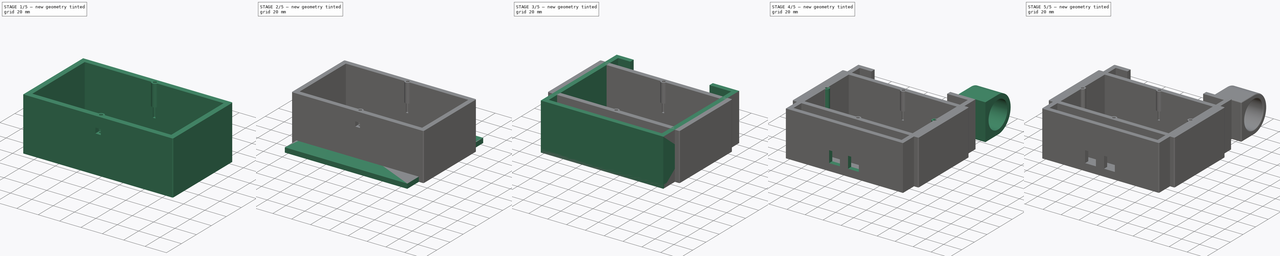
[diagram: build sequence overview — one tinted view per stage of 5, left to right]
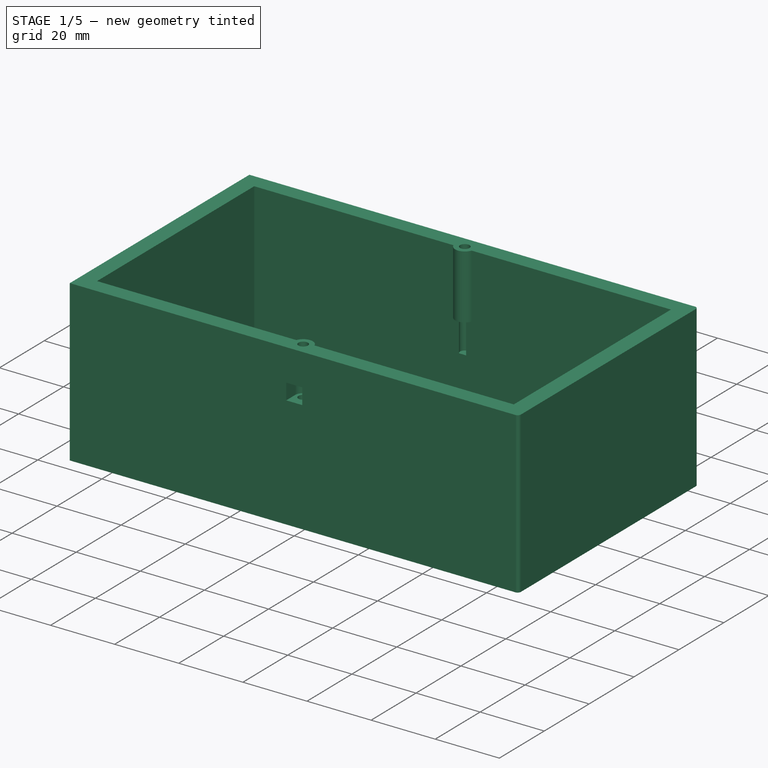
[diagram: stage 1 of 5 — iso view after this stage's code; geometry added in this stage tinted green]
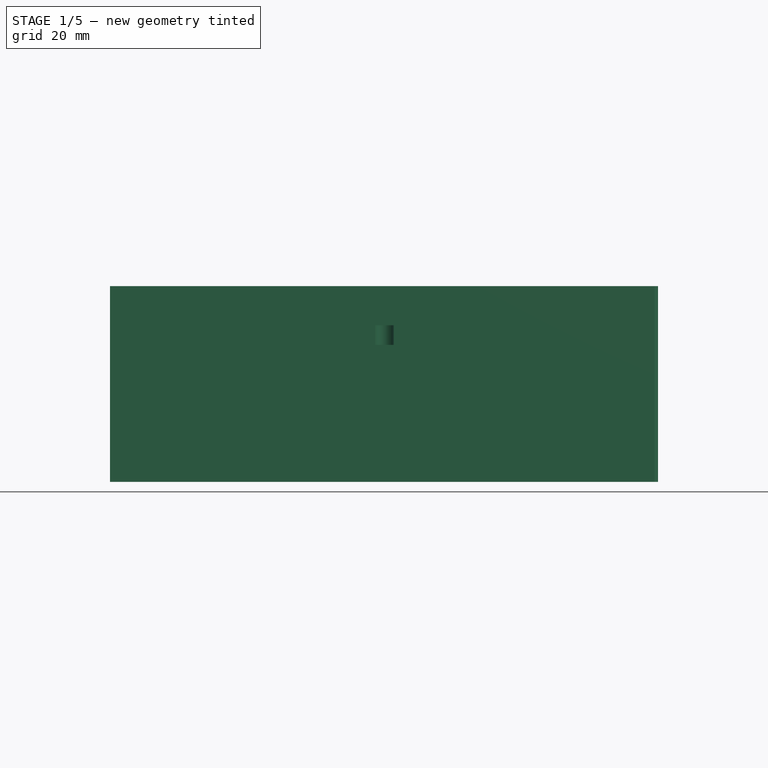
[diagram: stage 1 of 5 — front view after this stage's code; geometry added in this stage tinted green]
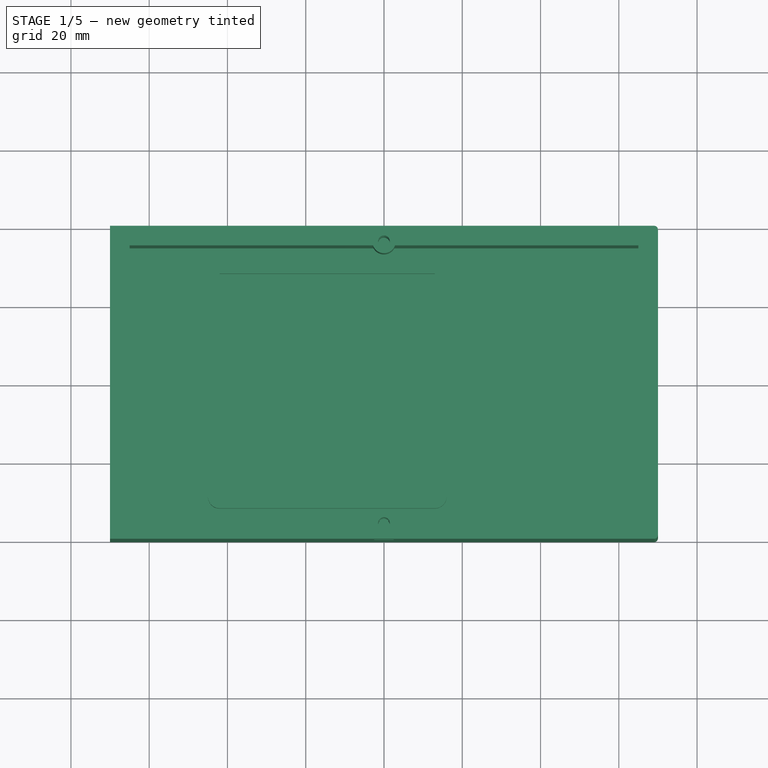
[diagram: stage 1 of 5 — top view after this stage's code; geometry added in this stage tinted green]
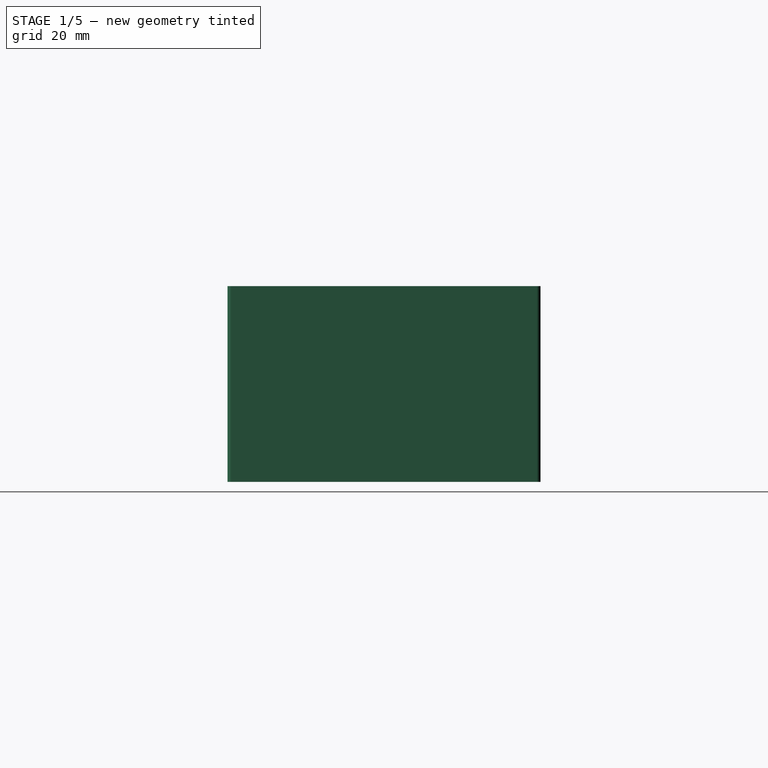
[diagram: stage 1 of 5 — right view after this stage's code; geometry added in this stage tinted green]
FCSTD DOCUMENT  (FreeCAD 1.0R39109 (Git))
Label: driver-box
License: All rights reserved
LicenseURL: https://en.wikipedia.org/wiki/All_rights_reserved
objects: Sketcher::SketchObject×30, PartDesign::Pocket×18, PartDesign::Fillet×17, PartDesign::Pad×12, PartDesign::Body×4
note: 205 computed .brp shape members not serialized (recipe doc carries the construction recipe); baked Part::Feature solids carry a one-line shape summary decoded from their .brp

FEATURE [PartDesign::Body] Body001  label="box cap"
  AllowCompound = false
  Group = -> [Sketch016,Pad005,Fillet007,Fillet008,Sketch017,Pocket011,Sketch018,Pocket012,Fillet009]
  Origin = -> Origin001
  Tip = -> Fillet009
FEATURE [Sketcher::SketchObject] Sketch019
  ArcFitTolerance = 1e-06
  AttachmentSupport = -> [XY_Plane002]
  FullyConstrained = true
  MakeInternals = false
  MapMode = 5
  sketch-geometry (4):
    g0: LineSegment StartX=-70 StartY=40 StartZ=0 EndX=-70 EndY=-40 EndZ=0
    g1: LineSegment StartX=-70 StartY=-40 StartZ=0 EndX=70 EndY=-40 EndZ=0
    g2: LineSegment StartX=70 StartY=-40 StartZ=0 EndX=70 EndY=40 EndZ=0
    g3: LineSegment StartX=70 StartY=40 StartZ=0 EndX=-70 EndY=40 EndZ=0
  constraints (11):
    c: Coincident(g0,g1)
    c: Coincident(g1,g2)
    c: Coincident(g2,g3)
    c: Coincident(g3,g0)
    c: Vertical(g0)
    c: Vertical(g2)
    c: Horizontal(g1)
    c: Horizontal(g3)
    c: DistanceX(g3,g3) = 140
    c: DistanceY(g0,g0) = 80
    c: Symmetric(g0,g1,g-1)
FEATURE [PartDesign::Pad] Pad006  label="base001"
  Direction = (0,0,1)
  Length = 5
  Length2 = 10
  Profile = -> Sketch019
  ReferenceAxis = -> Sketch019 [N_Axis]
  Refine = true
  Suppressed = false
  Type = 0
FEATURE [Sketcher::SketchObject] Sketch020
  ArcFitTolerance = 1e-06
  AttachmentSupport = -> [XY_Plane002]
  FullyConstrained = true
  MakeInternals = false
  MapMode = 5
  sketch-geometry (8):
    g0: LineSegment StartX=-70 StartY=40 StartZ=0 EndX=-70 EndY=-40 EndZ=0
    g1: LineSegment StartX=-70 StartY=-40 StartZ=0 EndX=70 EndY=-40 EndZ=0
    g2: LineSegment StartX=70 StartY=-40 StartZ=0 EndX=70 EndY=40 EndZ=0
    g3: LineSegment StartX=70 StartY=40 StartZ=0 EndX=-70 EndY=40 EndZ=0
    g4: LineSegment StartX=65 StartY=-35 StartZ=0 EndX=65 EndY=35 EndZ=0
    g5: LineSegment StartX=65 StartY=35 StartZ=0 EndX=-65 EndY=35 EndZ=0
    g6: LineSegment StartX=-65 StartY=35 StartZ=0 EndX=-65 EndY=-35 EndZ=0
    g7: LineSegment StartX=-65 StartY=-35 StartZ=0 EndX=65 EndY=-35 EndZ=0
  constraints (22):
    c: Coincident(g0,g1)
    c: Coincident(g1,g2)
    c: Coincident(g2,g3)
    c: Coincident(g3,g0)
    c: Vertical(g0)
    c: Vertical(g2)
    c: Horizontal(g1)
    c: Horizontal(g3)
    c: DistanceX(g3,g3) = 140
    c: DistanceY(g0,g0) = 80
    c: Symmetric(g0,g1,g-1)
    c: Coincident(g4,g5)
    c: Coincident(g4,g7)
    c: Coincident(g5,g6)
    c: Coincident(g6,g7)
    c: Symmetric(g4,g6,g-1)
    c: Distance(g6,g0) = 5
    c: Distance(g4,g2) = 5
    c: Perpendicular(g7,g4)
    c: Perpendicular(g5,g4)
    c: Parallel(g5,g3)
    c: Distance(g3,g5) = 5
FEATURE [PartDesign::Pad] Pad007  label="wall001"
  BaseFeature = -> Pad006
  Direction = (0,0,1)
  Length = 50
  Length2 = 10
  Profile = -> Sketch020
  ReferenceAxis = -> Sketch020 [N_Axis]
  Refine = true
  Suppressed = false
  Type = 0
FEATURE [Sketcher::SketchObject] Sketch026
  ArcFitTolerance = 1e-06
  AttachmentOffset = pos=(0,0,50) rot=(0,0,1;0rad)
  AttachmentSupport = -> [XY_Plane002]
  ExternalGeometry = -> [Pad007]
  FullyConstrained = true
  MakeInternals = false
  MapMode = 5
  Placement = pos=(0,0,50) rot=(0,0,1;0rad)
  sketch-geometry (2):
    g0: Circle CenterX=0 CenterY=-36 CenterZ=0 NormalX=0 NormalY=0 NormalZ=1 AngleXU=0 Radius=3
    g1: Circle CenterX=0 CenterY=36 CenterZ=0 NormalX=0 NormalY=0 NormalZ=1 AngleXU=0 Radius=3
  constraints (6):
    c: Diameter(g0) = 6
    c: Diameter(g1) = 6
    c: PointOnObject(g1,g-2)
    c: PointOnObject(g0,g-2)
    c: Distance(g1,g-5) = 4
    c: Distance(g0,g-6) = 4
FEATURE [PartDesign::Pad] Pad008  label="hatch screw path001"
  BaseFeature = -> Pad007
  Direction = (0,0,1)
  Length = 20
  Length2 = 10
  Profile = -> Sketch026
  ReferenceAxis = -> Sketch026 [N_Axis]
  Refine = true
  Reversed = true
  Suppressed = false
  Type = 0
FEATURE [Sketcher::SketchObject] Sketch027
  ArcFitTolerance = 1e-06
  AttachmentOffset = pos=(0,0,50) rot=(0,0,1;0rad)
  AttachmentSupport = -> [XY_Plane002]
  ExternalGeometry = -> [Pad008]
  FullyConstrained = true
  MakeInternals = false
  MapMode = 5
  Placement = pos=(0,0,50) rot=(0,0,1;0rad)
  sketch-geometry (2):
    g0: Circle CenterX=0 CenterY=36 CenterZ=0 NormalX=0 NormalY=0 NormalZ=1 AngleXU=0 Radius=1.5
    g1: Circle CenterX=0 CenterY=-36 CenterZ=0 NormalX=0 NormalY=0 NormalZ=1 AngleXU=0 Radius=1.5
  constraints (4):
    c: Coincident(g0,g-3)
    c: Coincident(g1,g-4)
    c: Diameter(g1) = 3
    c: Diameter(g0) = 3
FEATURE [PartDesign::Pocket] Pocket018  label="hatch screw holes001"
  BaseFeature = -> Pad008
  Direction = (0,0,-1)
  Length = 30
  Length2 = 5
  Profile = -> Sketch027
  ReferenceAxis = -> Sketch027 [N_Axis]
  Refine = true
  Suppressed = false
  Type = 0
FEATURE [Sketcher::SketchObject] Sketch028
  ArcFitTolerance = 1e-06
  AttachmentOffset = pos=(0,0,40) rot=(0,0,1;0rad)
  AttachmentSupport = -> [XY_Plane002]
  ExternalGeometry = -> [Pocket018]
  FullyConstrained = true
  MakeInternals = false
  MapMode = 5
  Placement = pos=(0,0,40) rot=(0,0,1;0rad)
  sketch-geometry (8):
    g0: ArcOfCircle CenterX=0 CenterY=36 CenterZ=0 NormalX=0 NormalY=0 NormalZ=1 AngleXU=0 Radius=2.5 StartAngle=3.14159 EndAngle=6.28319
    g1: LineSegment StartX=-2.5 StartY=36 StartZ=0 EndX=-2.5 EndY=44.98 EndZ=0
    g2: LineSegment StartX=2.5 StartY=36 StartZ=0 EndX=2.5 EndY=44.98 EndZ=0
    g3: LineSegment StartX=2.5 StartY=44.98 StartZ=0 EndX=-2.5 EndY=44.98 EndZ=0
    g4: ArcOfCircle CenterX=0 CenterY=-36 CenterZ=0 NormalX=0 NormalY=0 NormalZ=1 AngleXU=0 Radius=2.5 StartAngle=3.81e-13 EndAngle=3.14159
    g5: LineSegment StartX=-2.5 StartY=-36 StartZ=0 EndX=-2.5 EndY=-45.04 EndZ=0
    g6: LineSegment StartX=2.5 StartY=-36 StartZ=0 EndX=2.5 EndY=-45.04 EndZ=0
    g7: LineSegment StartX=2.5 StartY=-45.04 StartZ=0 EndX=-2.5 EndY=-45.04 EndZ=0
  constraints (20):
    c: Coincident(g0,g-3)
    c: Diameter(g0) = 5
    c: Vertical(g1)
    c: Vertical(g2)
    c: Coincident(g3,g2)
    c: Coincident(g3,g1)
    c: Horizontal(g3)
    c: Tangent(g0,g2) = -1.5708
    c: Tangent(g0,g1) = 1.5708
    c: DistanceY(g2,g2) = 8.98
    c: Coincident(g4,g-4)
    c: Diameter(g4) = 5
    c: Vertical(g5)
    c: Vertical(g6)
    c: Coincident(g7,g6)
    c: Coincident(g7,g5)
    c: Horizontal(g7)
    c: Tangent(g4,g5) = -1.5708
    c: DistanceY(g5,g5) = 9.04
    c: Tangent(g4,g6) = 1.5708
FEATURE [PartDesign::Pocket] Pocket019  label="hatch nut holes001"
  BaseFeature = -> Pocket018
  Direction = (0,0,-1)
  Length = 5
  Length2 = 5
  Profile = -> Sketch028
  ReferenceAxis = -> Sketch028 [N_Axis]
  Refine = true
  Suppressed = false
  Type = 0
FEATURE [Sketcher::SketchObject] Sketch029
  ArcFitTolerance = 1e-06
  AttachmentSupport = -> [YZ_Plane002]
  FullyConstrained = true
  MakeInternals = false
  MapMode = 5
  Placement = pos=(0,0,0) rot=(0.57735,0.57735,0.57735;2.0944rad)
  sketch-geometry (1):
    g0: Circle CenterX=0 CenterY=20 CenterZ=0 NormalX=0 NormalY=0 NormalZ=1 AngleXU=0 Radius=3.5
  constraints (3):
    c: Diameter(g0) = 7
    c: PointOnObject(g0,g-2)
    c: DistanceY(g-1,g0) = 20
FEATURE [PartDesign::Pocket] Pocket020  label="cable hole"
  BaseFeature = -> Pocket019
  Direction = (-1,0,0)
  Length = 80
  Length2 = 5
  Profile = -> Sketch029
  ReferenceAxis = -> Sketch029 [N_Axis]
  Refine = true
  Suppressed = false
  Type = 0
FEATURE [Sketcher::SketchObject] Sketch030
  ArcFitTolerance = 1e-06
  AttachmentSupport = -> [XY_Plane002]
  ExternalGeometry = -> [Pad007]
  FullyConstrained = true
  MakeInternals = false
  MapMode = 5
  sketch-geometry (12):
    g0: LineSegment StartX=-42 StartY=28.5 StartZ=0 EndX=-42 EndY=-28.5 EndZ=0
    g1: LineSegment StartX=-42 StartY=-28.5 StartZ=0 EndX=13 EndY=-28.5 EndZ=0
    g2: LineSegment StartX=13 StartY=-28.5 StartZ=0 EndX=13 EndY=28.5 EndZ=0
    g3: LineSegment StartX=13 StartY=28.5 StartZ=0 EndX=-42 EndY=28.5 EndZ=0
    g4: LineSegment StartX=16 StartY=-28.5 StartZ=0 EndX=16 EndY=28.5 EndZ=0
    g5: ArcOfCircle CenterX=13 CenterY=28.5 CenterZ=0 NormalX=0 NormalY=0 NormalZ=-1 AngleXU=0 Radius=3 StartAngle=1.5708 EndAngle=3.14159
    g6: LineSegment StartX=13 StartY=31.5 StartZ=0 EndX=-42 EndY=31.5 EndZ=0
    g7: ArcOfCircle CenterX=-42 CenterY=28.5 CenterZ=0 NormalX=0 NormalY=0 NormalZ=-1 AngleXU=-1.5708 Radius=3 StartAngle=1.5708 EndAngle=3.14159
    g8: LineSegment StartX=-45 StartY=28.5 StartZ=0 EndX=-45 EndY=-28.5 EndZ=0
    g9: ArcOfCircle CenterX=-42 CenterY=-28.5 CenterZ=0 NormalX=0 NormalY=0 NormalZ=-1 AngleXU=-3.14159 Radius=3 StartAngle=1.5708 EndAngle=3.14159
    g10: LineSegment StartX=-42 StartY=-31.5 StartZ=0 EndX=13 EndY=-31.5 EndZ=0
    g11: ArcOfCircle CenterX=13 CenterY=-28.5 CenterZ=0 NormalX=0 NormalY=0 NormalZ=-1 AngleXU=1.5708 Radius=3 StartAngle=1.5708 EndAngle=3.14159
  constraints (27):
    c: Coincident(g0,g1)
    c: Coincident(g1,g2)
    c: Coincident(g2,g3)
    c: Coincident(g3,g0)
    c: Vertical(g0)
    c: Horizontal(g1)
    c: Horizontal(g3)
    c: DistanceY(g0,g0) = 57
    c: DistanceX(g3,g3) = 55
    c: Symmetric(g2,g1,g-1)
    c: Distance(g-2,g2) = 13
    c: Tangent(g4,g5) = -1.5708
    c: Tangent(g4,g11) = -1.5708
    c: Tangent(g5,g6) = -1.5708
    c: Tangent(g6,g7) = -1.5708
    c: Tangent(g7,g8) = -1.5708
    c: Tangent(g8,g9) = -1.5708
    c: Tangent(g9,g10) = -1.5708
    c: Tangent(g10,g11) = -1.5708
    c: Coincident(g11,g1)
    c: Parallel(g4,g2)
    c: Coincident(g5,g3)
    c: Parallel(g6,g3)
    c: Coincident(g7,g3)
    c: Parallel(g8,g0)
    c: Coincident(g9,g0)
    c: Distance(g10,g1) = 3
FEATURE [PartDesign::Pad] Pad009  label="transformer stop"
  BaseFeature = -> Pocket020
  Direction = (0,0,1)
  Length = 10
  Length2 = 10
  Profile = -> Sketch030
  ReferenceAxis = -> Sketch030 [N_Axis]
  Refine = true
  Suppressed = false
  Type = 0
FEATURE [PartDesign::Body] Body003  label="plasma ball box cap"
  AllowCompound = false
  Group = -> [Sketch031,Pad010,Sketch032,Pocket021,Sketch033,Pocket022,Sketch034,Pad011,Fillet010,Fillet011,Fillet012]
  Origin = -> Origin003
  Tip = -> Fillet012
FEATURE [PartDesign::Fillet] Fillet013
  Base = -> Pad009 [Edge7]
  BaseFeature = -> Pad009
  Radius = 1
  Refine = true
  SupportTransform = false
  Suppressed = false
  UseAllEdges = false
FEATURE [PartDesign::Fillet] Fillet014
  Base = -> Fillet013 [Edge40]
  BaseFeature = -> Fillet013
  Radius = 1
  Refine = true
  SupportTransform = false
  Suppressed = false
  UseAllEdges = false
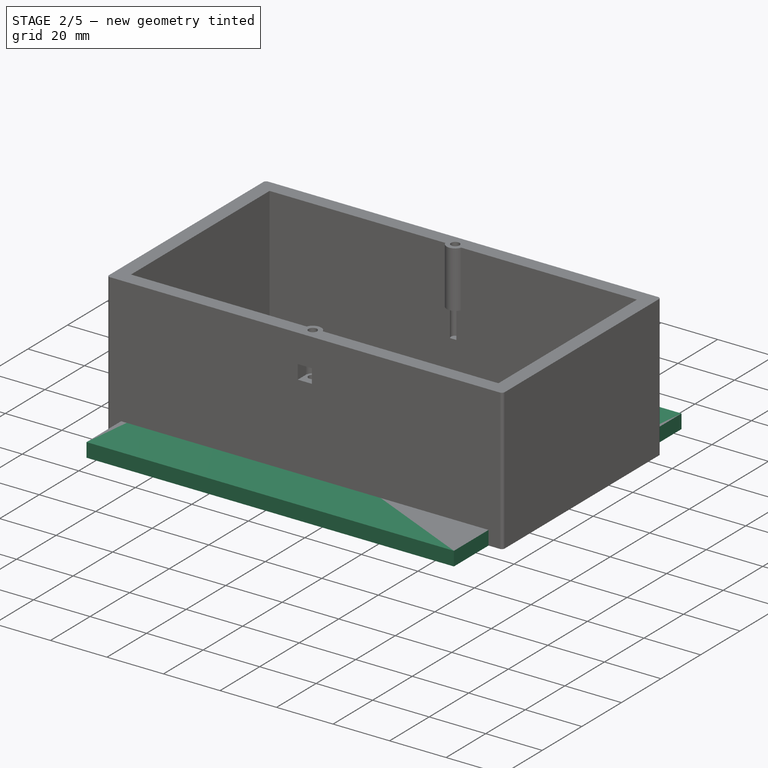
[diagram: stage 2 of 5 — iso view after this stage's code; geometry added in this stage tinted green]
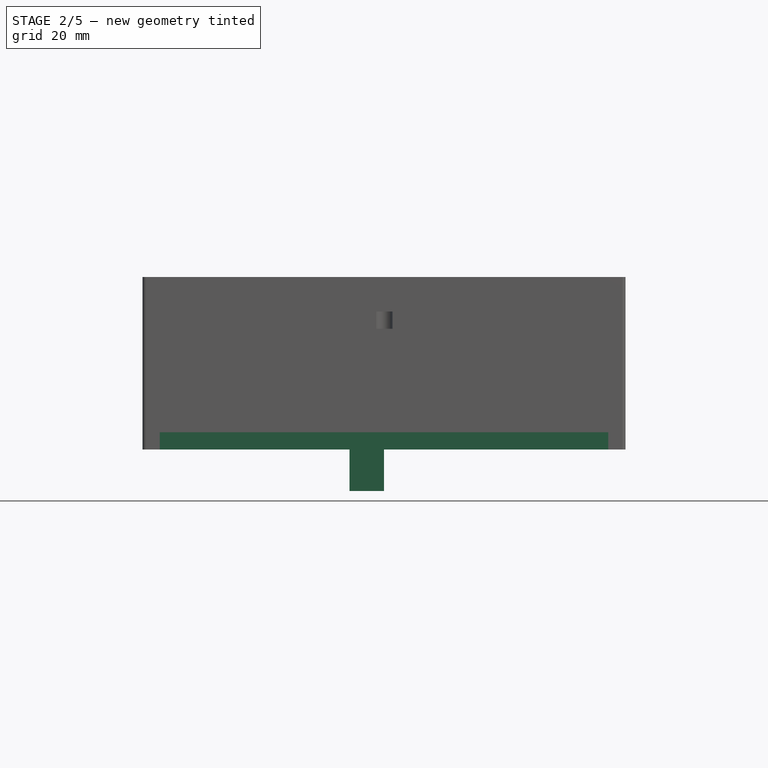
[diagram: stage 2 of 5 — front view after this stage's code; geometry added in this stage tinted green]
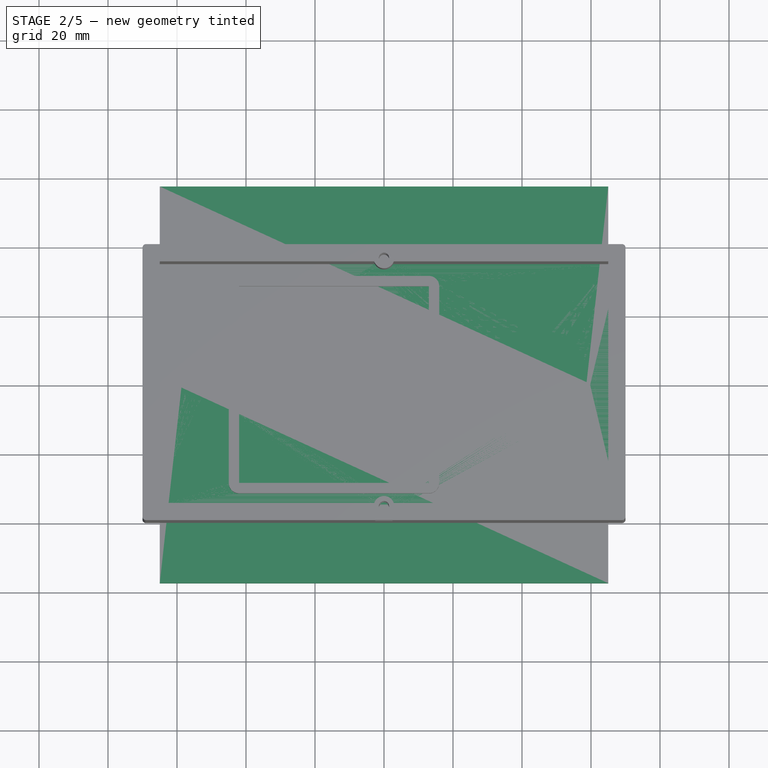
[diagram: stage 2 of 5 — top view after this stage's code; geometry added in this stage tinted green]
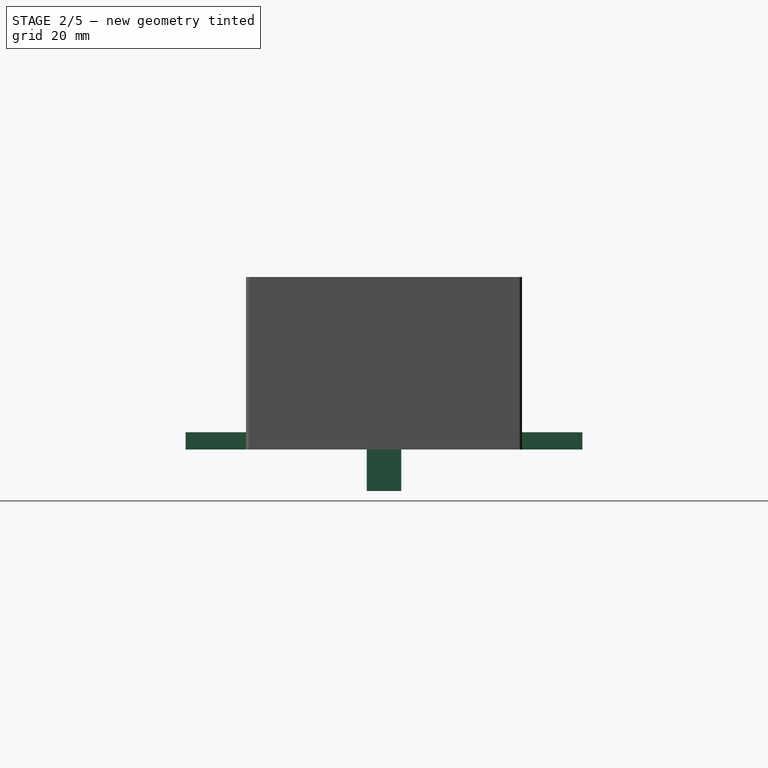
[diagram: stage 2 of 5 — right view after this stage's code; geometry added in this stage tinted green]
FEATURE [PartDesign::Body] Body  label="Box"
  AllowCompound = false
  Group = -> [Sketch,Pad,Sketch001,Pad001,Sketch002,Pocket,Sketch003,Pocket001,Sketch004,Pocket002,Sketch005,Pocket003,Sketch006,Pocket004,Sketch007,Pad002,Sketch008,Pocket005,Sketch009,Pocket006,Sketch010,Pocket007,Sketch011,Pad003,Sketch012,Pocket008,Sketch013,Pad004,Sketch014,Pocket009,Fillet,Fillet001,Fillet002,Fillet003,Fillet004,Fillet005,Fillet006,Sketch015,Pocket010]
  Origin = -> Origin
  Tip = -> Pocket010
FEATURE [Sketcher::SketchObject] Sketch016
  ArcFitTolerance = 1e-06
  AttachmentSupport = -> [XY_Plane001]
  FullyConstrained = true
  MakeInternals = false
  MapMode = 5
  sketch-geometry (6):
    g0: LineSegment StartX=-65 StartY=57.5 StartZ=0 EndX=-65 EndY=-57.5 EndZ=0
    g1: LineSegment StartX=-65 StartY=-57.5 StartZ=0 EndX=65 EndY=-57.5 EndZ=0
    g2: LineSegment StartX=65 StartY=-57.5 StartZ=0 EndX=65 EndY=57.5 EndZ=0
    g3: LineSegment StartX=65 StartY=57.5 StartZ=0 EndX=-65 EndY=57.5 EndZ=0
    g4: Circle CenterX=-60 CenterY=0 CenterZ=0 NormalX=0 NormalY=0 NormalZ=1 AngleXU=0 Radius=1.5
    g5: Circle CenterX=60 CenterY=0 CenterZ=0 NormalX=0 NormalY=0 NormalZ=1 AngleXU=0 Radius=1.5
  constraints (17):
    c: Coincident(g0,g1)
    c: Coincident(g1,g2)
    c: Coincident(g2,g3)
    c: Coincident(g3,g0)
    c: Vertical(g0)
    c: Vertical(g2)
    c: Horizontal(g1)
    c: Horizontal(g3)
    c: DistanceX(g3,g3) = 130
    c: DistanceY(g0,g0) = 115
    c: Symmetric(g0,g1,g-1)
    c: PointOnObject(g4,g-1)
    c: Diameter(g4) = 3
    c: Distance(g4,g0) = 5
    c: PointOnObject(g5,g-1)
    c: Diameter(g5) = 3
    c: Distance(g5,g2) = 5
FEATURE [PartDesign::Pad] Pad005  label="cap base"
  Direction = (0,0,1)
  Length = 5
  Length2 = 10
  Profile = -> Sketch016
  ReferenceAxis = -> Sketch016 [N_Axis]
  Refine = true
  Suppressed = false
  Type = 0
FEATURE [Sketcher::SketchObject] Sketch031
  ArcFitTolerance = 1e-06
  AttachmentSupport = -> [XY_Plane003]
  FullyConstrained = true
  MakeInternals = false
  MapMode = 5
  sketch-geometry (6):
    g0: LineSegment StartX=-70 StartY=40 StartZ=0 EndX=-70 EndY=-40 EndZ=0
    g1: LineSegment StartX=-70 StartY=-40 StartZ=0 EndX=70 EndY=-40 EndZ=0
    g2: LineSegment StartX=70 StartY=-40 StartZ=0 EndX=70 EndY=40 EndZ=0
    g3: LineSegment StartX=70 StartY=40 StartZ=0 EndX=-70 EndY=40 EndZ=0
    g4: Circle CenterX=0 CenterY=35 CenterZ=0 NormalX=0 NormalY=0 NormalZ=1 AngleXU=0 Radius=1.5
    g5: Circle CenterX=0 CenterY=-35 CenterZ=0 NormalX=0 NormalY=0 NormalZ=1 AngleXU=0 Radius=1.5
  constraints (17):
    c: Coincident(g0,g1)
    c: Coincident(g1,g2)
    c: Coincident(g2,g3)
    c: Coincident(g3,g0)
    c: Vertical(g0)
    c: Vertical(g2)
    c: Horizontal(g1)
    c: Horizontal(g3)
    c: DistanceX(g3,g3) = 140
    c: DistanceY(g0,g0) = 80
    c: Symmetric(g0,g1,g-1)
    c: Diameter(g4) = 3
    c: Diameter(g5) = 3
    c: PointOnObject(g4,g-2)
    c: Distance(g4,g3) = 5
    c: PointOnObject(g5,g-2)
    c: Distance(g5,g1) = 5
FEATURE [PartDesign::Pad] Pad010  label="cap base001"
  Direction = (0,0,1)
  Length = 5
  Length2 = 10
  Profile = -> Sketch031
  ReferenceAxis = -> Sketch031 [N_Axis]
  Refine = true
  Suppressed = false
  Type = 0
FEATURE [Sketcher::SketchObject] Sketch032
  ArcFitTolerance = 1e-06
  AttachmentOffset = pos=(0,0,3) rot=(0,0,1;0rad)
  AttachmentSupport = -> [XY_Plane003]
  ExternalGeometry = -> [Sketch031]
  FullyConstrained = true
  MakeInternals = false
  MapMode = 5
  Placement = pos=(0,0,3) rot=(0,0,1;0rad)
  sketch-geometry (2):
    g0: Circle CenterX=0 CenterY=35 CenterZ=0 NormalX=0 NormalY=0 NormalZ=1 AngleXU=0 Radius=3
    g1: Circle CenterX=0 CenterY=-35 CenterZ=0 NormalX=0 NormalY=0 NormalZ=1 AngleXU=0 Radius=3
  constraints (4):
    c: Coincident(g0,g-3)
    c: Coincident(g1,g-4)
    c: Diameter(g0) = 6
    c: Diameter(g1) = 6
FEATURE [PartDesign::Pocket] Pocket021  label="cap screw holes001"
  BaseFeature = -> Pad010
  Direction = (0,0,-1)
  Length = 5
  Length2 = 5
  Profile = -> Sketch032
  ReferenceAxis = -> Sketch032 [N_Axis]
  Refine = true
  Reversed = true
  Suppressed = false
  Type = 0
FEATURE [Sketcher::SketchObject] Sketch033
  ArcFitTolerance = 1e-06
  AttachmentSupport = -> [XY_Plane003]
  ExternalGeometry = -> [Sketch031]
  FullyConstrained = true
  MakeInternals = false
  MapMode = 5
  sketch-geometry (2):
    g0: Circle CenterX=43.5 CenterY=0 CenterZ=0 NormalX=0 NormalY=0 NormalZ=1 AngleXU=0 Radius=16.25
    g1: Circle CenterX=-54 CenterY=0 CenterZ=0 NormalX=0 NormalY=0 NormalZ=1 AngleXU=0 Radius=4
  constraints (6):
    c: PointOnObject(g0,g-1)
    c: Diameter(g0) = 32.5
    c: Distance(g0,g-3) = 26.5
    c: PointOnObject(g1,g-1)
    c: Diameter(g1) = 8
    c: Distance(g1,g-4) = 16
FEATURE [PartDesign::Pocket] Pocket022  label="switch and bulb holes"
  BaseFeature = -> Pocket021
  Direction = (0,0,-1)
  Length = 5
  Length2 = 5
  Profile = -> Sketch033
  ReferenceAxis = -> Sketch033 [N_Axis]
  Refine = true
  Reversed = true
  Suppressed = false
  Type = 0
FEATURE [Sketcher::SketchObject] Sketch034
  ArcFitTolerance = 1e-06
  AttachmentSupport = -> [XY_Plane003]
  ExternalGeometry = -> [Sketch031]
  FullyConstrained = true
  MakeInternals = false
  MapMode = 5
  sketch-geometry (4):
    g0: LineSegment StartX=-10 StartY=5 StartZ=0 EndX=-10 EndY=-5 EndZ=0
    g1: LineSegment StartX=-10 StartY=-5 StartZ=0 EndX=8.9e-15 EndY=-5 EndZ=0
    g2: LineSegment StartX=8.9e-15 StartY=-5 StartZ=0 EndX=9.3e-15 EndY=5 EndZ=0
    g3: LineSegment StartX=9.3e-15 StartY=5 StartZ=0 EndX=-10 EndY=5 EndZ=0
  constraints (11):
    c: Coincident(g0,g1)
    c: Coincident(g1,g2)
    c: Coincident(g2,g3)
    c: Coincident(g3,g0)
    c: Vertical(g0)
    c: Horizontal(g1)
    c: Horizontal(g3)
    c: DistanceX(g3,g3) = 10
    c: DistanceY(g0,g0) = 10
    c: Symmetric(g2,g1,g-1)
    c: Distance(g-3,g2) = 70
FEATURE [PartDesign::Pad] Pad011  label="transformer top stop"
  BaseFeature = -> Pocket022
  Direction = (0,0,1)
  Length = 12
  Length2 = 10
  Profile = -> Sketch034
  ReferenceAxis = -> Sketch034 [N_Axis]
  Refine = true
  Reversed = true
  Suppressed = false
  Type = 0
FEATURE [PartDesign::Fillet] Fillet010
  Base = -> Pad011 [Edge2,Edge8]
  BaseFeature = -> Pad011
  Radius = 1
  Refine = true
  SupportTransform = false
  Suppressed = false
  UseAllEdges = false
FEATURE [PartDesign::Fillet] Fillet011
  Base = -> Fillet010 [Edge20,Edge3]
  BaseFeature = -> Fillet010
  Radius = 1
  Refine = true
  SupportTransform = false
  Suppressed = false
  UseAllEdges = false
FEATURE [PartDesign::Fillet] Fillet012
  Base = -> Fillet011 [Edge25]
  BaseFeature = -> Fillet011
  Radius = 1
  Refine = true
  SupportTransform = false
  Suppressed = false
  UseAllEdges = false
FEATURE [PartDesign::Fillet] Fillet015
  Base = -> Fillet014 [Edge14,Edge20]
  BaseFeature = -> Fillet014
  Radius = 1
  Refine = true
  SupportTransform = false
  Suppressed = false
  UseAllEdges = false
FEATURE [PartDesign::Fillet] Fillet016
  Base = -> Fillet015 [Edge4,Edge8,Edge1,Edge5]
  BaseFeature = -> Fillet015
  Radius = 1
  Refine = true
  SupportTransform = false
  Suppressed = false
  UseAllEdges = false
FEATURE [PartDesign::Body] Body002  label="plasma ball box"
  AllowCompound = false
  Group = -> [Sketch019,Pad006,Sketch020,Pad007,Sketch026,Pad008,Sketch027,Pocket018,Sketch028,Pocket019,Sketch029,Pocket020,Sketch030,Pad009,Fillet013,Fillet014,Fillet015,Fillet016]
  Origin = -> Origin002
  Tip = -> Fillet016
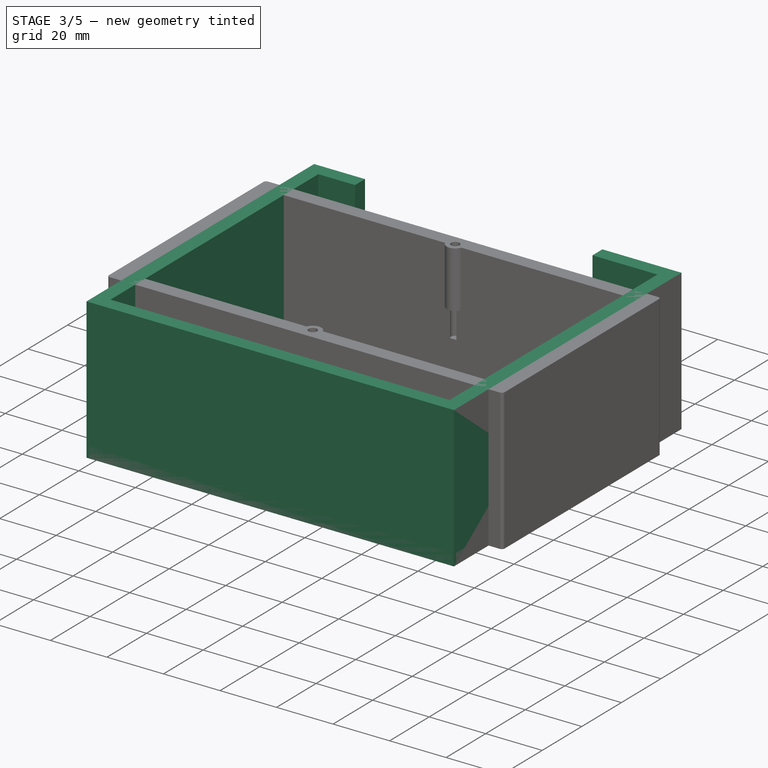
[diagram: stage 3 of 5 — iso view after this stage's code; geometry added in this stage tinted green]
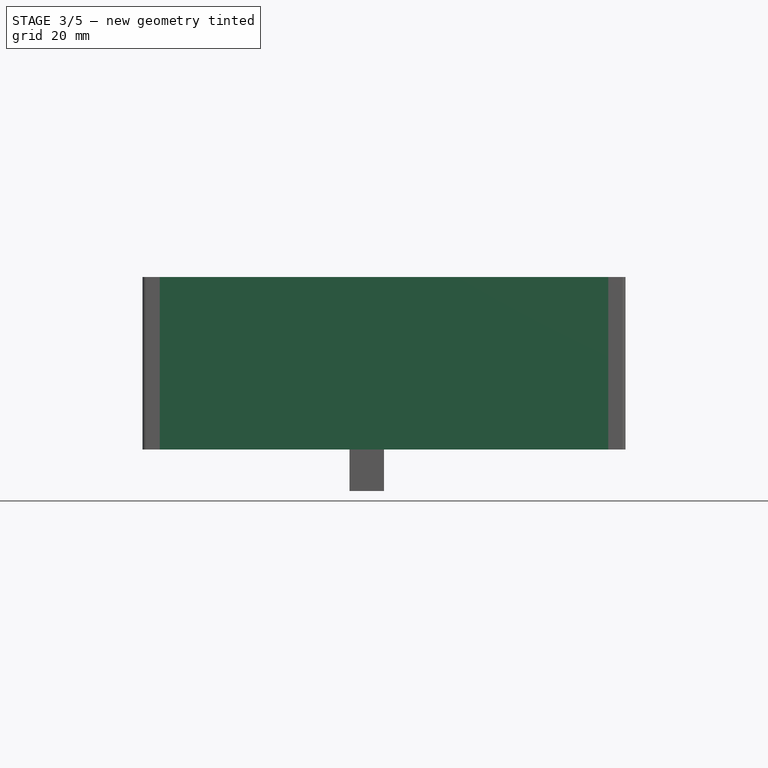
[diagram: stage 3 of 5 — front view after this stage's code; geometry added in this stage tinted green]
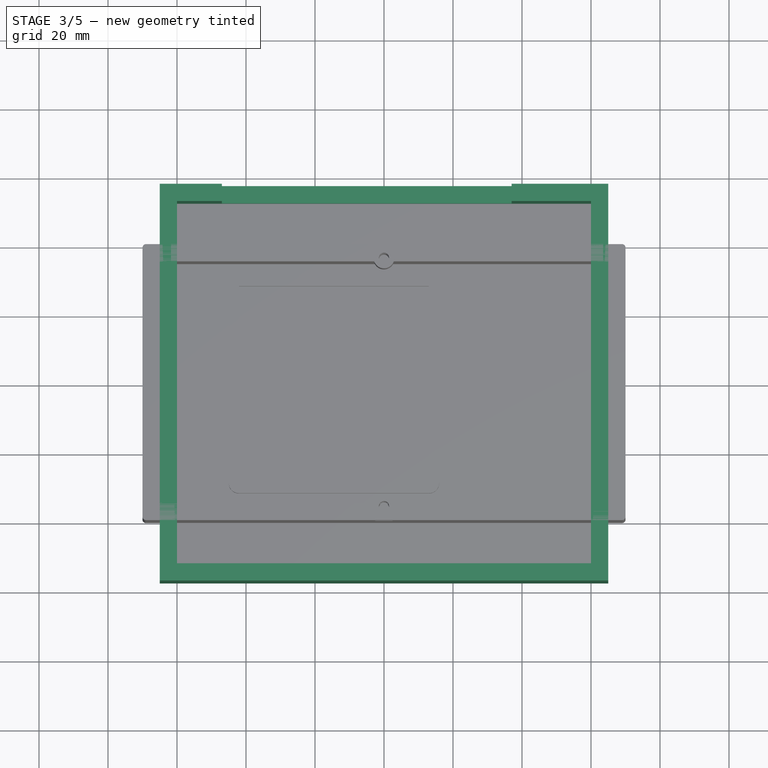
[diagram: stage 3 of 5 — top view after this stage's code; geometry added in this stage tinted green]
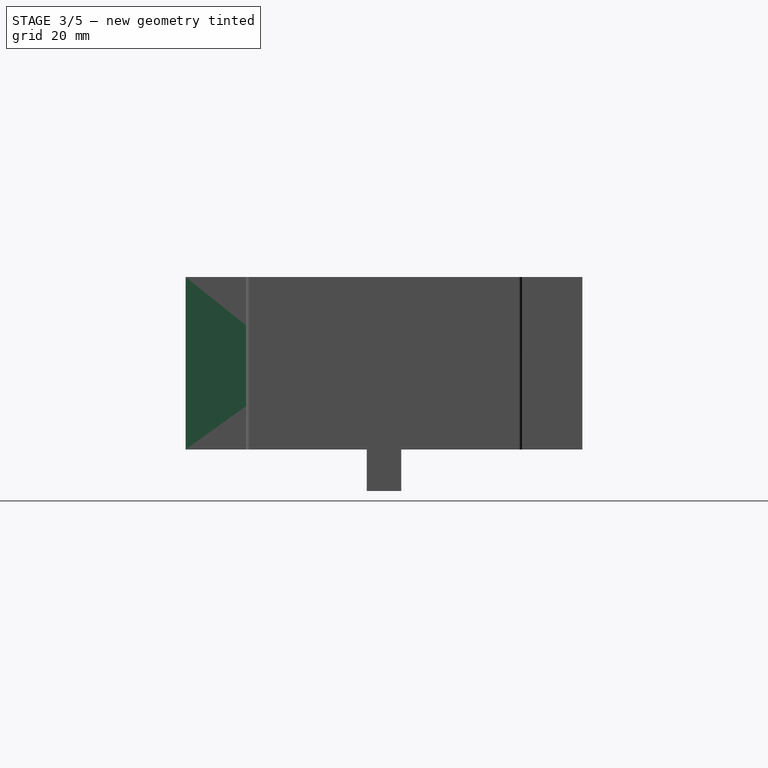
[diagram: stage 3 of 5 — right view after this stage's code; geometry added in this stage tinted green]
FEATURE [Sketcher::SketchObject] Sketch
  ArcFitTolerance = 1e-06
  AttachmentSupport = -> [XY_Plane]
  FullyConstrained = true
  MakeInternals = false
  MapMode = 5
  sketch-geometry (4):
    g0: LineSegment StartX=-65 StartY=57.5 StartZ=0 EndX=-65 EndY=-57.5 EndZ=0
    g1: LineSegment StartX=-65 StartY=-57.5 StartZ=0 EndX=65 EndY=-57.5 EndZ=0
    g2: LineSegment StartX=65 StartY=-57.5 StartZ=0 EndX=65 EndY=57.5 EndZ=0
    g3: LineSegment StartX=65 StartY=57.5 StartZ=0 EndX=-65 EndY=57.5 EndZ=0
  constraints (11):
    c: Coincident(g0,g1)
    c: Coincident(g1,g2)
    c: Coincident(g2,g3)
    c: Coincident(g3,g0)
    c: Vertical(g0)
    c: Vertical(g2)
    c: Horizontal(g1)
    c: Horizontal(g3)
    c: DistanceX(g3,g3) = 130
    c: DistanceY(g0,g0) = 115
    c: Symmetric(g0,g1,g-1)
FEATURE [PartDesign::Pad] Pad  label="base"
  Direction = (0,0,1)
  Length = 5
  Length2 = 10
  Profile = -> Sketch
  ReferenceAxis = -> Sketch [N_Axis]
  Refine = true
  Suppressed = false
  Type = 0
FEATURE [Sketcher::SketchObject] Sketch001
  ArcFitTolerance = 1e-06
  AttachmentSupport = -> [XY_Plane]
  FullyConstrained = true
  MakeInternals = false
  MapMode = 5
  sketch-geometry (8):
    g0: LineSegment StartX=-65 StartY=57.5 StartZ=0 EndX=-65 EndY=-57.5 EndZ=0
    g1: LineSegment StartX=-65 StartY=-57.5 StartZ=0 EndX=65 EndY=-57.5 EndZ=0
    g2: LineSegment StartX=65 StartY=-57.5 StartZ=0 EndX=65 EndY=57.5 EndZ=0
    g3: LineSegment StartX=65 StartY=57.5 StartZ=0 EndX=-65 EndY=57.5 EndZ=0
    g4: LineSegment StartX=60 StartY=-52.5 StartZ=0 EndX=60 EndY=52.5 EndZ=0
    g5: LineSegment StartX=60 StartY=52.5 StartZ=0 EndX=-60 EndY=52.5 EndZ=0
    g6: LineSegment StartX=-60 StartY=52.5 StartZ=0 EndX=-60 EndY=-52.5 EndZ=0
    g7: LineSegment StartX=-60 StartY=-52.5 StartZ=0 EndX=60 EndY=-52.5 EndZ=0
  constraints (22):
    c: Coincident(g0,g1)
    c: Coincident(g1,g2)
    c: Coincident(g2,g3)
    c: Coincident(g3,g0)
    c: Vertical(g0)
    c: Vertical(g2)
    c: Horizontal(g1)
    c: Horizontal(g3)
    c: DistanceX(g3,g3) = 130
    c: DistanceY(g0,g0) = 115
    c: Symmetric(g0,g1,g-1)
    c: Coincident(g4,g5)
    c: Coincident(g4,g7)
    c: Coincident(g5,g6)
    c: Coincident(g6,g7)
    c: Symmetric(g4,g6,g-1)
    c: Distance(g3,g5) = 5
    c: Distance(g6,g0) = 5
    c: Distance(g4,g2) = 5
    c: Distance(g7,g1) = 5
    c: Perpendicular(g7,g4)
    c: Perpendicular(g5,g4)
FEATURE [PartDesign::Pad] Pad001  label="wall"
  BaseFeature = -> Pad
  Direction = (0,0,1)
  Length = 50
  Length2 = 10
  Profile = -> Sketch001
  ReferenceAxis = -> Sketch001 [N_Axis]
  Refine = true
  Suppressed = false
  Type = 0
FEATURE [Sketcher::SketchObject] Sketch002
  ArcFitTolerance = 1e-06
  AttachmentSupport = -> [XZ_Plane]
  ExternalGeometry = -> [Pad001]
  FullyConstrained = true
  MakeInternals = false
  MapMode = 5
  Placement = pos=(0,0,0) rot=(1,0,0;1.5708rad)
  sketch-geometry (4):
    g0: LineSegment StartX=-47 StartY=62 StartZ=0 EndX=-47 EndY=12 EndZ=0
    g1: LineSegment StartX=-47 StartY=12 StartZ=0 EndX=37 EndY=12 EndZ=0
    g2: LineSegment StartX=37 StartY=12 StartZ=0 EndX=37 EndY=62 EndZ=0
    g3: LineSegment StartX=37 StartY=62 StartZ=0 EndX=-47 EndY=62 EndZ=0
  constraints (12):
    c: Coincident(g0,g1)
    c: Coincident(g1,g2)
    c: Coincident(g2,g3)
    c: Coincident(g3,g0)
    c: Vertical(g0)
    c: Vertical(g2)
    c: Horizontal(g1)
    c: Horizontal(g3)
    c: DistanceX(g3,g3) = 84
    c: DistanceY(g0,g0) = 50
    c: Distance(g0,g-3) = 18
    c: Distance(g-3,g1) = 38
FEATURE [PartDesign::Pocket] Pocket  label="heatsink open"
  BaseFeature = -> Pad001
  Direction = (0,1,-2e-16)
  Length = 80
  Length2 = 5
  Profile = -> Sketch002
  ReferenceAxis = -> Sketch002 [N_Axis]
  Refine = true
  Suppressed = false
  Type = 0
FEATURE [Sketcher::SketchObject] Sketch003
  ArcFitTolerance = 1e-06
  AttachmentSupport = -> [YZ_Plane]
  ExternalGeometry = -> [Pocket]
  FullyConstrained = true
  MakeInternals = false
  MapMode = 5
  Placement = pos=(0,0,0) rot=(0.57735,0.57735,0.57735;2.0944rad)
  sketch-geometry (4):
    g0: LineSegment StartX=-32.5 StartY=30 StartZ=0 EndX=-32.5 EndY=18 EndZ=0
    g1: LineSegment StartX=-32.5 StartY=18 StartZ=0 EndX=-12.5 EndY=18 EndZ=0
    g2: LineSegment StartX=-12.5 StartY=18 StartZ=0 EndX=-12.5 EndY=30 EndZ=0
    g3: LineSegment StartX=-12.5 StartY=30 StartZ=0 EndX=-32.5 EndY=30 EndZ=0
  constraints (12):
    c: Coincident(g0,g1)
    c: Coincident(g1,g2)
    c: Coincident(g2,g3)
    c: Coincident(g3,g0)
    c: Vertical(g0)
    c: Vertical(g2)
    c: Horizontal(g1)
    c: Horizontal(g3)
    c: DistanceX(g3,g3) = 20
    c: DistanceY(g0,g0) = 12
    c: Distance(g-3,g0) = 25
    c: Distance(g1,g-4) = 18
FEATURE [PartDesign::Pocket] Pocket001  label="switch hole"
  BaseFeature = -> Pocket
  Direction = (-1,0,0)
  Length = 100
  Length2 = 5
  Profile = -> Sketch003
  ReferenceAxis = -> Sketch003 [N_Axis]
  Refine = true
  Reversed = true
  Suppressed = false
  Type = 0
FEATURE [PartDesign::Fillet] Fillet007
  Base = -> Pad005 [Edge2,Edge5]
  BaseFeature = -> Pad005
  Radius = 1
  Refine = true
  SupportTransform = false
  Suppressed = false
  UseAllEdges = false
FEATURE [PartDesign::Fillet] Fillet008
  Base = -> Fillet007 [Edge3,Edge14]
  BaseFeature = -> Fillet007
  Radius = 1
  Refine = true
  SupportTransform = false
  Suppressed = false
  UseAllEdges = false
FEATURE [Sketcher::SketchObject] Sketch017
  ArcFitTolerance = 1e-06
  AttachmentOffset = pos=(0,0,3) rot=(0,0,1;0rad)
  AttachmentSupport = -> [XY_Plane001]
  ExternalGeometry = -> [Fillet008]
  FullyConstrained = true
  MakeInternals = false
  MapMode = 5
  Placement = pos=(0,0,3) rot=(0,0,1;0rad)
  sketch-geometry (2):
    g0: Circle CenterX=-60 CenterY=0 CenterZ=0 NormalX=0 NormalY=0 NormalZ=1 AngleXU=0 Radius=3
    g1: Circle CenterX=60 CenterY=0 CenterZ=0 NormalX=0 NormalY=0 NormalZ=1 AngleXU=0 Radius=3
  constraints (4):
    c: Coincident(g0,g-3)
    c: Coincident(g1,g-4)
    c: Diameter(g1) = 6
    c: Diameter(g0) = 6
FEATURE [PartDesign::Pocket] Pocket011  label="cap screw holes"
  BaseFeature = -> Fillet008
  Direction = (0,0,-1)
  Length = 5
  Length2 = 5
  Profile = -> Sketch017
  ReferenceAxis = -> Sketch017 [N_Axis]
  Refine = true
  Reversed = true
  Suppressed = false
  Type = 0
FEATURE [Sketcher::SketchObject] Sketch018
  ArcFitTolerance = 1e-06
  AttachmentSupport = -> [XY_Plane001]
  FullyConstrained = true
  MakeInternals = false
  MapMode = 5
  sketch-geometry (8):
    g0: LineSegment StartX=-35 StartY=38 StartZ=0 EndX=-35 EndY=3 EndZ=0
    g1: LineSegment StartX=-35 StartY=3 StartZ=0 EndX=35 EndY=3 EndZ=0
    g2: LineSegment StartX=35 StartY=3 StartZ=0 EndX=35 EndY=38 EndZ=0
    g3: LineSegment StartX=35 StartY=38 StartZ=0 EndX=-35 EndY=38 EndZ=0
    g4: LineSegment StartX=-30.5 StartY=3 StartZ=0 EndX=-30.5 EndY=-24 EndZ=0
    g5: LineSegment StartX=-30.5 StartY=-24 StartZ=0 EndX=30.5 EndY=-24 EndZ=0
    g6: LineSegment StartX=30.5 StartY=-24 StartZ=0 EndX=30.5 EndY=3 EndZ=0
    g7: LineSegment StartX=30.5 StartY=3 StartZ=0 EndX=-30.5 EndY=3 EndZ=0
  constraints (22):
    c: Coincident(g0,g1)
    c: Coincident(g1,g2)
    c: Coincident(g2,g3)
    c: Coincident(g3,g0)
    c: Vertical(g0)
    c: Vertical(g2)
    c: Horizontal(g1)
    c: DistanceX(g3,g3) = 70
    c: DistanceY(g0,g0) = 35
    c: Symmetric(g0,g2,g-2)
    c: Coincident(g4,g5)
    c: Coincident(g5,g6)
    c: Coincident(g6,g7)
    c: Coincident(g7,g4)
    c: Vertical(g4)
    c: Vertical(g6)
    c: Horizontal(g7)
    c: PointOnObject(g4,g1)
    c: DistanceX(g5,g5) = 61
    c: DistanceY(g4,g4) = 27
    c: Symmetric(g4,g5,g-2)
    c: Distance(g-1,g1) = 3
FEATURE [PartDesign::Pocket] Pocket012  label="screen holes"
  BaseFeature = -> Pocket011
  Direction = (0,0,-1)
  Length = 5
  Length2 = 5
  Profile = -> Sketch018
  ReferenceAxis = -> Sketch018 [N_Axis]
  Refine = true
  Reversed = true
  Suppressed = false
  Type = 0
FEATURE [PartDesign::Fillet] Fillet009
  Base = -> Pocket012 [Edge26,Edge4,Edge30,Edge27]
  BaseFeature = -> Pocket012
  Radius = 1
  Refine = true
  SupportTransform = false
  Suppressed = false
  UseAllEdges = false
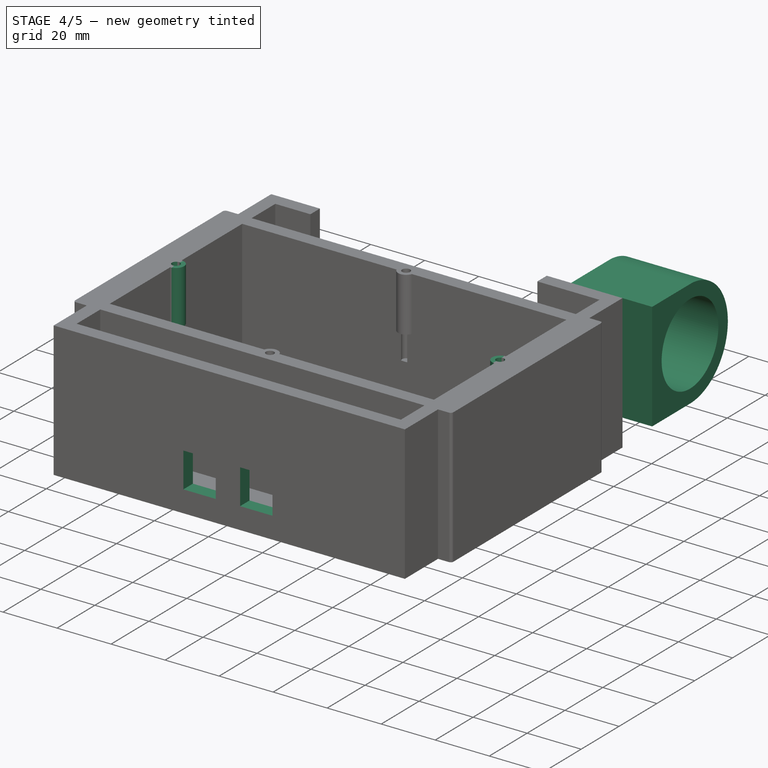
[diagram: stage 4 of 5 — iso view after this stage's code; geometry added in this stage tinted green]
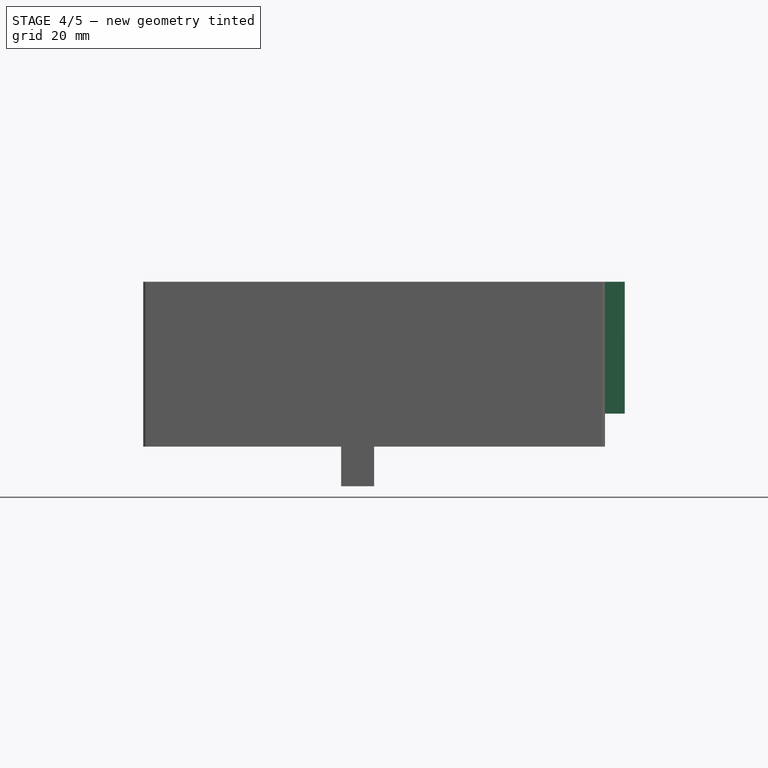
[diagram: stage 4 of 5 — front view after this stage's code; geometry added in this stage tinted green]
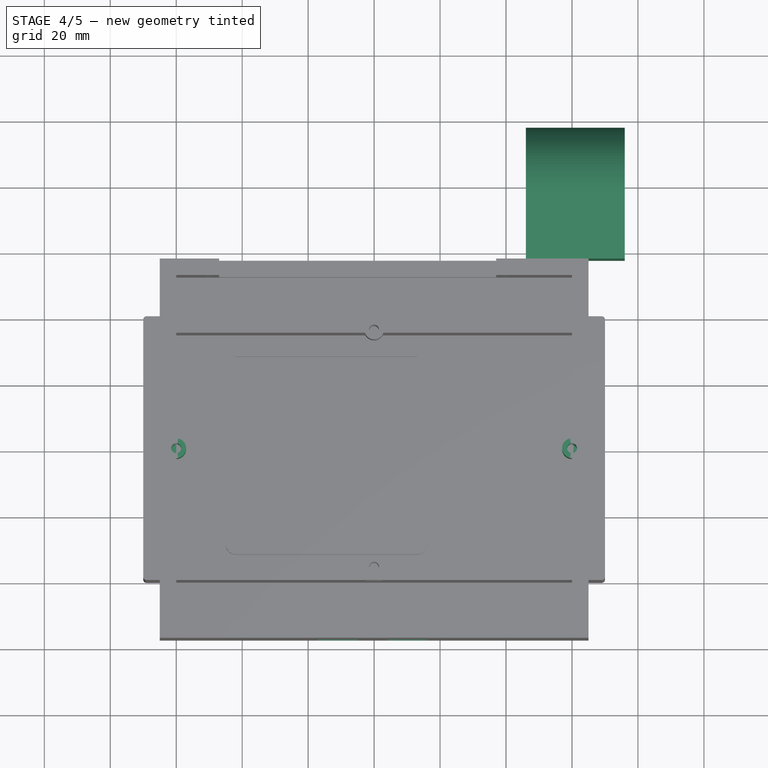
[diagram: stage 4 of 5 — top view after this stage's code; geometry added in this stage tinted green]
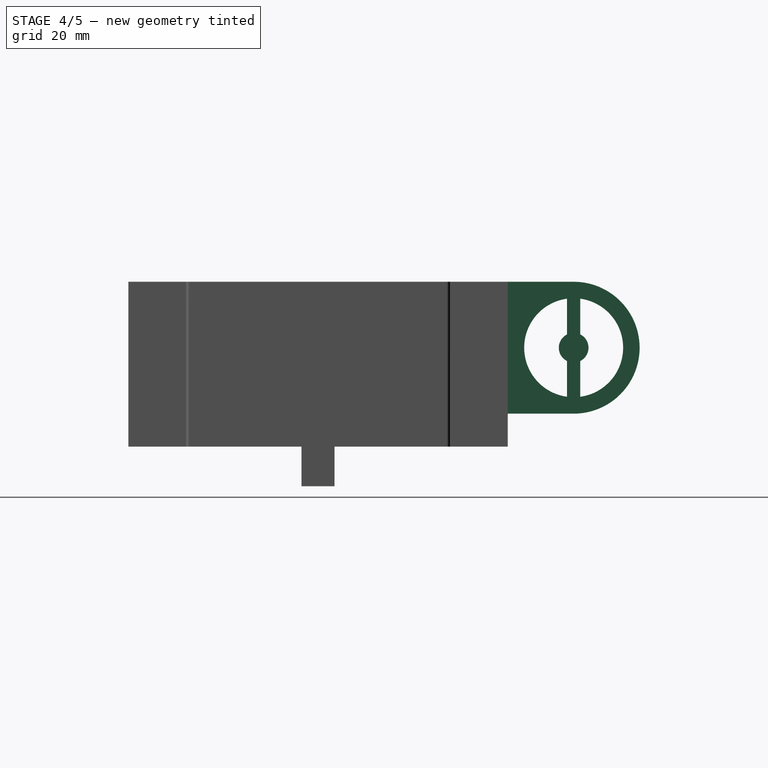
[diagram: stage 4 of 5 — right view after this stage's code; geometry added in this stage tinted green]
FEATURE [Sketcher::SketchObject] Sketch004
  ArcFitTolerance = 1e-06
  AttachmentSupport = -> [XY_Plane]
  ExternalGeometry = -> [Pocket001]
  FullyConstrained = true
  MakeInternals = false
  MapMode = 5
  sketch-geometry (2):
    g0: Circle CenterX=-55 CenterY=12.5 CenterZ=0 NormalX=0 NormalY=0 NormalZ=1 AngleXU=0 Radius=1.5
    g1: Circle CenterX=28.5 CenterY=-45.5 CenterZ=0 NormalX=0 NormalY=0 NormalZ=1 AngleXU=0 Radius=1.5
  constraints (6):
    c: Diameter(g0) = 3
    c: Diameter(g1) = 3
    c: Distance(g0,g-4) = 70
    c: Distance(g1,g-4) = 12
    c: Distance(g0,g-5) = 10
    c: Distance(g1,g-5) = 93.5
FEATURE [PartDesign::Pocket] Pocket002  label="board screw holes"
  BaseFeature = -> Pocket001
  Direction = (0,0,-1)
  Length = 20
  Length2 = 5
  Profile = -> Sketch004
  ReferenceAxis = -> Sketch004 [N_Axis]
  Refine = true
  Reversed = true
  Suppressed = false
  Type = 0
FEATURE [Sketcher::SketchObject] Sketch005
  ArcFitTolerance = 1e-06
  AttachmentSupport = -> [XY_Plane]
  ExternalGeometry = -> [Pocket002]
  FullyConstrained = false
  MakeInternals = false
  MapMode = 5
  sketch-geometry (14):
    g0: LineSegment StartX=-53.7861 StartY=10.3145 StartZ=0 EndX=-52.5003 EndY=12.4585 EndZ=0
    g1: LineSegment StartX=-52.5003 StartY=12.4585 StartZ=0 EndX=-53.7143 EndY=14.644 EndZ=0
    g2: LineSegment StartX=-53.7143 StartY=14.644 StartZ=0 EndX=-56.2139 EndY=14.6855 EndZ=0
    g3: LineSegment StartX=-56.2139 StartY=14.6855 StartZ=0 EndX=-57.4997 EndY=12.5415 EndZ=0
    g4: LineSegment StartX=-57.4997 StartY=12.5415 StartZ=0 EndX=-56.2857 EndY=10.356 EndZ=0
    g5: LineSegment StartX=-56.2857 StartY=10.356 StartZ=0 EndX=-53.7861 EndY=10.3145 EndZ=0
    g6: Circle [constr] CenterX=-55 CenterY=12.5 CenterZ=0 NormalX=0 NormalY=0 NormalZ=1 AngleXU=0 Radius=2.5
    g7: LineSegment StartX=27.1685 StartY=-47.6159 StartZ=0 EndX=29.6667 EndY=-47.7111 EndZ=0
    g8: LineSegment StartX=29.6667 StartY=-47.7111 StartZ=0 EndX=30.9982 EndY=-45.5952 EndZ=0
    g9: LineSegment StartX=30.9982 StartY=-45.5952 StartZ=0 EndX=29.8315 EndY=-43.3841 EndZ=0
    g10: LineSegment StartX=29.8315 StartY=-43.3841 StartZ=0 EndX=27.3333 EndY=-43.2889 EndZ=0
    g11: LineSegment StartX=27.3333 StartY=-43.2889 StartZ=0 EndX=26.0018 EndY=-45.4048 EndZ=0
    g12: LineSegment StartX=26.0018 StartY=-45.4048 StartZ=0 EndX=27.1685 EndY=-47.6159 EndZ=0
    g13: Circle [constr] CenterX=28.5 CenterY=-45.5 CenterZ=0 NormalX=0 NormalY=0 NormalZ=1 AngleXU=0 Radius=2.5
  constraints (30):
    c: Coincident(g0,g1)
    c: Coincident(g1,g2)
    c: Coincident(g2,g3)
    c: Coincident(g3,g4)
    c: Coincident(g4,g5)
    c: Coincident(g5,g0)
    c: Equal(g0, g1-g5) x5
    c: PointOnObject(g0,g6)
    c: PointOnObject(g1,g6)
    c: PointOnObject(g2,g6)
    c: PointOnObject(g3,g6)
    c: PointOnObject(g4,g6)
    c: PointOnObject(g5,g6)
    c: Radius(g6) = 2.5
    c: Coincident(g6,g-3)
    c: Coincident(g7,g8)
    c: Coincident(g8,g9)
    c: Coincident(g9,g10)
    c: Coincident(g10,g11)
    c: Coincident(g11,g12)
    c: Coincident(g12,g7)
    c: Equal(g7, g8-g12) x5
    c: PointOnObject(g7,g13)
    c: PointOnObject(g8,g13)
    c: PointOnObject(g9,g13)
    c: PointOnObject(g10,g13)
    c: PointOnObject(g11,g13)
    c: PointOnObject(g12,g13)
    c: Radius(g13) = 2.5
    c: Coincident(g13,g-4)
FEATURE [PartDesign::Pocket] Pocket003  label="board nut holes"
  BaseFeature = -> Pocket002
  Direction = (0,0,-1)
  Length = 2
  Length2 = 5
  Profile = -> Sketch005
  ReferenceAxis = -> Sketch005 [N_Axis]
  Refine = true
  Reversed = true
  Suppressed = false
  Type = 0
FEATURE [Sketcher::SketchObject] Sketch006
  ArcFitTolerance = 1e-06
  AttachmentSupport = -> [XZ_Plane]
  ExternalGeometry = -> [Pocket003]
  FullyConstrained = true
  MakeInternals = false
  MapMode = 5
  Placement = pos=(0,0,0) rot=(1,0,0;1.5708rad)
  sketch-geometry (8):
    g0: LineSegment StartX=-17 StartY=21 StartZ=0 EndX=-17 EndY=8 EndZ=0
    g1: LineSegment StartX=-17 StartY=8 StartZ=0 EndX=-5 EndY=8 EndZ=0
    g2: LineSegment StartX=-5 StartY=8 StartZ=0 EndX=-5 EndY=21 EndZ=0
    g3: LineSegment StartX=-5 StartY=21 StartZ=0 EndX=-17 EndY=21 EndZ=0
    g4: LineSegment StartX=4 StartY=21 StartZ=0 EndX=4 EndY=8 EndZ=0
    g5: LineSegment StartX=4 StartY=8 StartZ=0 EndX=16 EndY=8 EndZ=0
    g6: LineSegment StartX=16 StartY=8 StartZ=0 EndX=16 EndY=21 EndZ=0
    g7: LineSegment StartX=16 StartY=21 StartZ=0 EndX=4 EndY=21 EndZ=0
  constraints (24):
    c: Coincident(g0,g1)
    c: Coincident(g1,g2)
    c: Coincident(g2,g3)
    c: Coincident(g3,g0)
    c: Vertical(g0)
    c: Vertical(g2)
    c: Horizontal(g1)
    c: Horizontal(g3)
    c: Distance(g-4,g1) = 8
    c: DistanceY(g0,g0) = 13
    c: Distance(g-3,g0) = 48
    c: DistanceX(g3,g3) = 12
    c: Coincident(g4,g5)
    c: Coincident(g5,g6)
    c: Coincident(g6,g7)
    c: Coincident(g7,g4)
    c: Vertical(g4)
    c: Vertical(g6)
    c: Horizontal(g5)
    c: Horizontal(g7)
    c: DistanceX(g7,g7) = 12
    c: DistanceY(g6,g6) = 13
    c: Distance(g-4,g5) = 8
    c: Distance(g-3,g4) = 69
FEATURE [PartDesign::Pocket] Pocket004  label="connector holes"
  BaseFeature = -> Pocket003
  Direction = (0,1,-2e-16)
  Length = 80
  Length2 = 5
  Profile = -> Sketch006
  ReferenceAxis = -> Sketch006 [N_Axis]
  Refine = true
  Reversed = true
  Suppressed = false
  Type = 0
FEATURE [Sketcher::SketchObject] Sketch007
  ArcFitTolerance = 1e-06
  AttachmentOffset = pos=(0,0,50) rot=(0,0,1;0rad)
  AttachmentSupport = -> [XY_Plane]
  ExternalGeometry = -> [Pocket004]
  FullyConstrained = true
  MakeInternals = false
  MapMode = 5
  Placement = pos=(0,0,50) rot=(0,0,1;0rad)
  sketch-geometry (2):
    g0: Circle CenterX=-60 CenterY=0 CenterZ=0 NormalX=0 NormalY=0 NormalZ=1 AngleXU=0 Radius=3
    g1: Circle CenterX=60 CenterY=0 CenterZ=0 NormalX=0 NormalY=0 NormalZ=1 AngleXU=0 Radius=3
  constraints (6):
    c: Diameter(g0) = 6
    c: PointOnObject(g0,g-1)
    c: Distance(g0,g-3) = 5
    c: Diameter(g1) = 6
    c: PointOnObject(g1,g-1)
    c: Distance(g1,g-4) = 5
FEATURE [PartDesign::Pad] Pad002  label="hatch screw path"
  BaseFeature = -> Pocket004
  Direction = (0,0,1)
  Length = 20
  Length2 = 10
  Profile = -> Sketch007
  ReferenceAxis = -> Sketch007 [N_Axis]
  Refine = true
  Reversed = true
  Suppressed = false
  Type = 0
FEATURE [Sketcher::SketchObject] Sketch008
  ArcFitTolerance = 1e-06
  AttachmentOffset = pos=(0,0,50) rot=(0,0,1;0rad)
  AttachmentSupport = -> [XY_Plane]
  ExternalGeometry = -> [Pad002]
  FullyConstrained = false
  MakeInternals = false
  MapMode = 5
  Placement = pos=(0,0,50) rot=(0,0,1;0rad)
  sketch-geometry (2):
    g0: Circle CenterX=-60 CenterY=0 CenterZ=0 NormalX=0 NormalY=0 NormalZ=1 AngleXU=0 Radius=1.5
    g1: Circle CenterX=60 CenterY=0 CenterZ=0 NormalX=0 NormalY=0 NormalZ=1 AngleXU=0 Radius=1.5
  constraints (2):
    c: Diameter(g0) = 3
    c: Coincident(g0,g-4)
FEATURE [PartDesign::Pocket] Pocket005  label="hatch screw holes"
  BaseFeature = -> Pad002
  Direction = (0,0,-1)
  Length = 30
  Length2 = 5
  Profile = -> Sketch008
  ReferenceAxis = -> Sketch008 [N_Axis]
  Refine = true
  Suppressed = false
  Type = 0
FEATURE [Sketcher::SketchObject] Sketch009
  ArcFitTolerance = 1e-06
  AttachmentOffset = pos=(0,0,40) rot=(0,0,1;0rad)
  AttachmentSupport = -> [XY_Plane]
  ExternalGeometry = -> [Pocket005]
  FullyConstrained = true
  MakeInternals = false
  MapMode = 5
  Placement = pos=(0,0,40) rot=(0,0,1;0rad)
  sketch-geometry (8):
    g0: ArcOfCircle CenterX=-60 CenterY=0 CenterZ=0 NormalX=0 NormalY=0 NormalZ=1 AngleXU=0 Radius=2.5 StartAngle=4.71239 EndAngle=7.85398
    g1: ArcOfCircle CenterX=60 CenterY=0 CenterZ=0 NormalX=0 NormalY=0 NormalZ=1 AngleXU=0 Radius=2.5 StartAngle=1.5708 EndAngle=4.71239
    g2: LineSegment StartX=-60 StartY=2.5 StartZ=0 EndX=-69 EndY=2.5 EndZ=0
    g3: LineSegment StartX=-60 StartY=-2.5 StartZ=0 EndX=-69 EndY=-2.5 EndZ=0
    g4: LineSegment StartX=-69 StartY=2.5 StartZ=0 EndX=-69 EndY=-2.5 EndZ=0
    g5: LineSegment StartX=60 StartY=2.5 StartZ=0 EndX=69 EndY=2.5 EndZ=0
    g6: LineSegment StartX=60 StartY=-2.5 StartZ=0 EndX=69 EndY=-2.5 EndZ=0
    g7: LineSegment StartX=69 StartY=2.5 StartZ=0 EndX=69 EndY=-2.5 EndZ=0
  constraints (20):
    c: Coincident(g0,g-3)
    c: Coincident(g1,g-4)
    c: Horizontal(g2)
    c: Horizontal(g3)
    c: Coincident(g4,g2)
    c: Coincident(g4,g3)
    c: Vertical(g4)
    c: DistanceX(g3,g3) = 9
    c: Horizontal(g5)
    c: Horizontal(g6)
    c: Coincident(g7,g5)
    c: Coincident(g7,g6)
    c: Perpendicular(g6,g7)
    c: DistanceX(g6,g6) = 9
    c: Tangent(g0,g2) = -1.5708
    c: Tangent(g0,g3) = 1.5708
    c: Tangent(g1,g5) = 1.5708
    c: Tangent(g1,g6) = -1.5708
    c: DistanceY(g7,g7) = 5
    c: DistanceY(g4,g4) = 5
FEATURE [PartDesign::Pocket] Pocket006  label="hatch nut holes"
  BaseFeature = -> Pocket005
  Direction = (0,0,-1)
  Length = 5
  Length2 = 5
  Profile = -> Sketch009
  ReferenceAxis = -> Sketch009 [N_Axis]
  Refine = true
  Suppressed = false
  Type = 0
FEATURE [Sketcher::SketchObject] Sketch010
  ArcFitTolerance = 1e-06
  AttachmentSupport = -> [XZ_Plane]
  ExternalGeometry = -> [Pocket006]
  FullyConstrained = true
  MakeInternals = false
  MapMode = 5
  Placement = pos=(0,0,0) rot=(1,0,0;1.5708rad)
  sketch-geometry (4):
    g0: Circle CenterX=-50 CenterY=41 CenterZ=0 NormalX=0 NormalY=0 NormalZ=1 AngleXU=0 Radius=1.5
    g1: Circle CenterX=40 CenterY=41 CenterZ=0 NormalX=0 NormalY=0 NormalZ=1 AngleXU=0 Radius=1.5
    g2: Circle CenterX=-50 CenterY=14.5 CenterZ=0 NormalX=0 NormalY=0 NormalZ=1 AngleXU=0 Radius=1.5
    g3: Circle CenterX=40 CenterY=14.5 CenterZ=0 NormalX=0 NormalY=0 NormalZ=1 AngleXU=0 Radius=1.5
  constraints (12):
    c: Diameter(g0) = 3
    c: Distance(g0,g-3) = 9
    c: Diameter(g1) = 3
    c: Distance(g1,g-3) = 9
    c: DistanceX(g0,g1) = 90
    c: Distance(g0,g-4) = 3
    c: Diameter(g2) = 3
    c: DistanceY(g2,g0) = 26.5
    c: Distance(g2,g-4) = 3
    c: Diameter(g3) = 3
    c: DistanceX(g2,g3) = 90
    c: DistanceY(g3,g1) = 26.5
FEATURE [PartDesign::Pocket] Pocket007  label="heatsink screw holes"
  BaseFeature = -> Pocket006
  Direction = (0,1,-2e-16)
  Length = 80
  Length2 = 5
  Profile = -> Sketch010
  ReferenceAxis = -> Sketch010 [N_Axis]
  Refine = true
  Suppressed = false
  Type = 0
FEATURE [Sketcher::SketchObject] Sketch011
  ArcFitTolerance = 1e-06
  AttachmentOffset = pos=(0,0,46) rot=(0,0,1;0rad)
  AttachmentSupport = -> [YZ_Plane]
  ExternalGeometry = -> [Pocket007]
  FullyConstrained = true
  MakeInternals = false
  MapMode = 5
  Placement = pos=(46,0,0) rot=(0.57735,0.57735,0.57735;2.0944rad)
  sketch-geometry (4):
    g0: ArcOfCircle CenterX=77.5 CenterY=30 CenterZ=0 NormalX=0 NormalY=0 NormalZ=1 AngleXU=0 Radius=20 StartAngle=4.71239 EndAngle=7.85398
    g1: LineSegment StartX=77.5 StartY=50 StartZ=0 EndX=57.5 EndY=50 EndZ=0
    g2: LineSegment StartX=77.5 StartY=10 StartZ=0 EndX=57.5 EndY=10 EndZ=0
    g3: LineSegment StartX=57.5 StartY=50 StartZ=0 EndX=57.5 EndY=10 EndZ=0
  constraints (10):
    c: Diameter(g0) = 40
    c: Tangent(g0,g-3)
    c: Distance(g0,g-4) = 20
    c: Coincident(g1,g-4)
    c: PointOnObject(g2,g-3)
    c: Horizontal(g2)
    c: Coincident(g3,g1)
    c: Coincident(g3,g2)
    c: Tangent(g0,g1) = -1.5708
    c: Tangent(g0,g2) = 1.5708
FEATURE [PartDesign::Pad] Pad003  label="fan frame"
  BaseFeature = -> Pocket007
  Direction = (1,0,0)
  Length = 30
  Length2 = 10
  Profile = -> Sketch011
  ReferenceAxis = -> Sketch011 [N_Axis]
  Refine = true
  Suppressed = false
  Type = 0
FEATURE [Sketcher::SketchObject] Sketch012
  ArcFitTolerance = 1e-06
  AttachmentSupport = -> [YZ_Plane]
  ExternalGeometry = -> [Pad003]
  FullyConstrained = false
  MakeInternals = false
  MapMode = 5
  Placement = pos=(0,0,0) rot=(0.57735,0.57735,0.57735;2.0944rad)
  sketch-geometry (1):
    g0: Circle CenterX=77.5 CenterY=30 CenterZ=0 NormalX=0 NormalY=0 NormalZ=1 AngleXU=0 Radius=15
  constraints (1):
    c: Diameter(g0) = 30
FEATURE [PartDesign::Pocket] Pocket008  label="fan hole"
  BaseFeature = -> Pad003
  Direction = (-1,0,0)
  Length = 80
  Length2 = 5
  Profile = -> Sketch012
  ReferenceAxis = -> Sketch012 [N_Axis]
  Refine = true
  Reversed = true
  Suppressed = false
  Type = 0
FEATURE [Sketcher::SketchObject] Sketch013
  ArcFitTolerance = 1e-06
  AttachmentOffset = pos=(0,0,59) rot=(0,0,1;0rad)
  AttachmentSupport = -> [YZ_Plane]
  ExternalGeometry = -> [Pocket008]
  FullyConstrained = false
  MakeInternals = false
  MapMode = 5
  Placement = pos=(59,0,0) rot=(0.57735,0.57735,0.57735;2.0944rad)
  sketch-geometry (8):
    g0: LineSegment StartX=75.5 StartY=12.5 StartZ=0 EndX=75.5 EndY=25.9689 EndZ=0
    g1: LineSegment StartX=75.5 StartY=47.5 StartZ=0 EndX=79.5 EndY=47.5 EndZ=0
    g2: LineSegment StartX=79.5 StartY=47.5 StartZ=0 EndX=79.5 EndY=34.0311 EndZ=0
    g3: LineSegment StartX=79.5 StartY=12.5 StartZ=0 EndX=75.5 EndY=12.5 EndZ=0
    g4: ArcOfCircle CenterX=77.5 CenterY=30 CenterZ=0 NormalX=0 NormalY=0 NormalZ=1 AngleXU=0 Radius=4.5 StartAngle=2.03135 EndAngle=4.25183
    g5: LineSegment StartX=75.5 StartY=34.0311 StartZ=0 EndX=75.5 EndY=47.5 EndZ=0
    g6: LineSegment StartX=79.5 StartY=25.9689 StartZ=0 EndX=79.5 EndY=12.5 EndZ=0
    g7: ArcOfCircle CenterX=77.5 CenterY=30 CenterZ=0 NormalX=0 NormalY=0 NormalZ=1 AngleXU=0 Radius=4.5 StartAngle=5.17294 EndAngle=7.39343
  constraints (21):
    c: Coincident(g5,g1)
    c: Coincident(g1,g2)
    c: Coincident(g6,g3)
    c: Coincident(g3,g0)
    c: Vertical(g0)
    c: Vertical(g2)
    c: Horizontal(g1)
    c: Horizontal(g3)
    c: Symmetric(g1,g0,g-3)
    c: DistanceX(g1,g1) = 4
    c: DistanceY(g6,g2) = 35
    c: Coincident(g4,g-3)
    c: Diameter(g4) = 9
    c: PointOnObject(g4,g5)
    c: PointOnObject(g5,g4)
    c: Coincident(g2,g7)
    c: PointOnObject(g6,g7)
    c: Equal(g4,g7)
    c: Coincident(g4,g0)
    c: PointOnObject(g7,g6)
    c: Coincident(g4,g7)
FEATURE [PartDesign::Pad] Pad004  label="fan holder"
  BaseFeature = -> Pocket008
  Direction = (1,0,0)
  Length = 6
  Length2 = 10
  Midplane = true
  Profile = -> Sketch013
  ReferenceAxis = -> Sketch013 [N_Axis]
  Refine = true
  Suppressed = false
  Type = 0
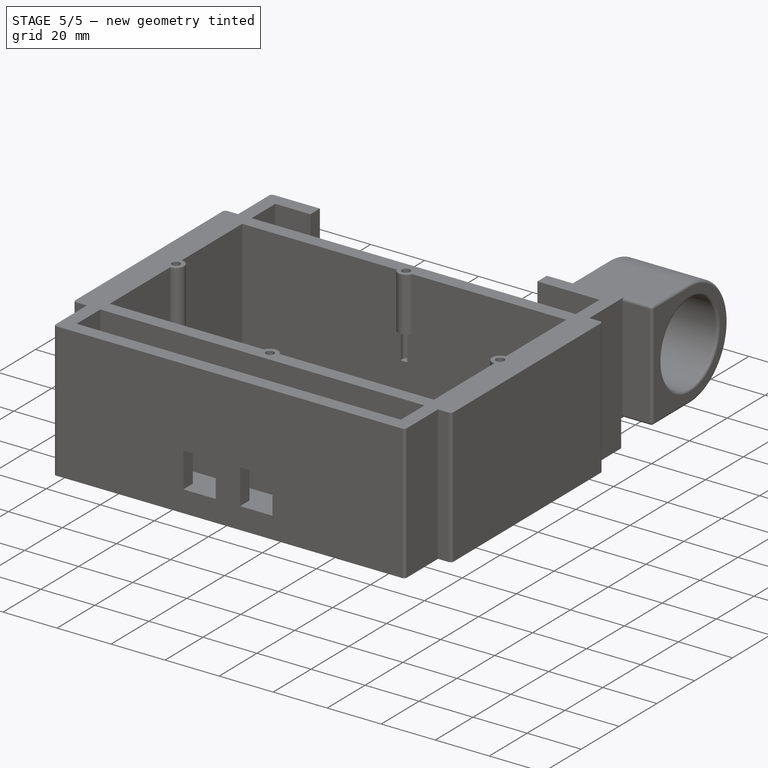
[diagram: stage 5 of 5 — iso view after this stage's code; geometry added in this stage tinted green]
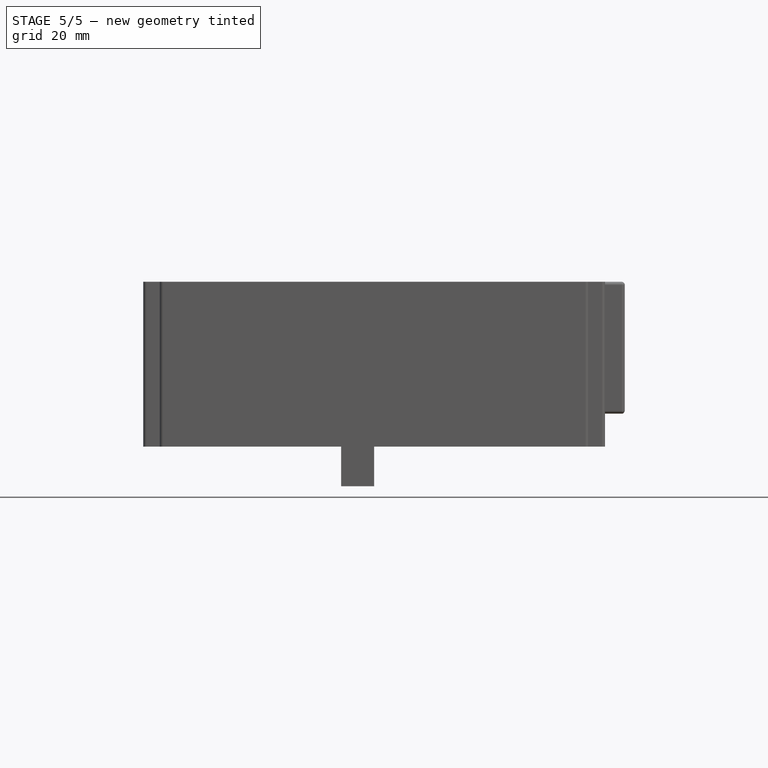
[diagram: stage 5 of 5 — front view after this stage's code; geometry added in this stage tinted green]
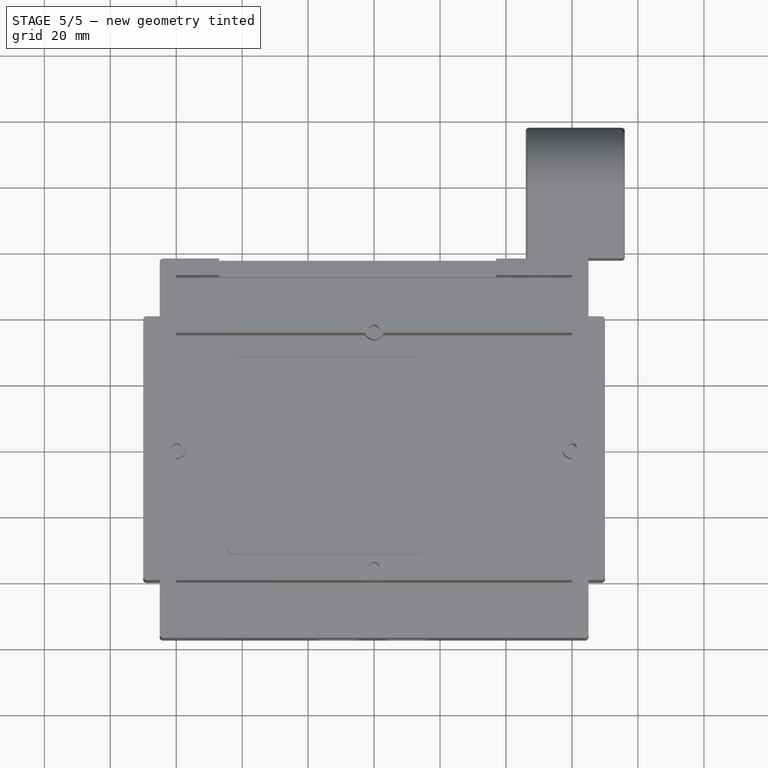
[diagram: stage 5 of 5 — top view after this stage's code; geometry added in this stage tinted green]
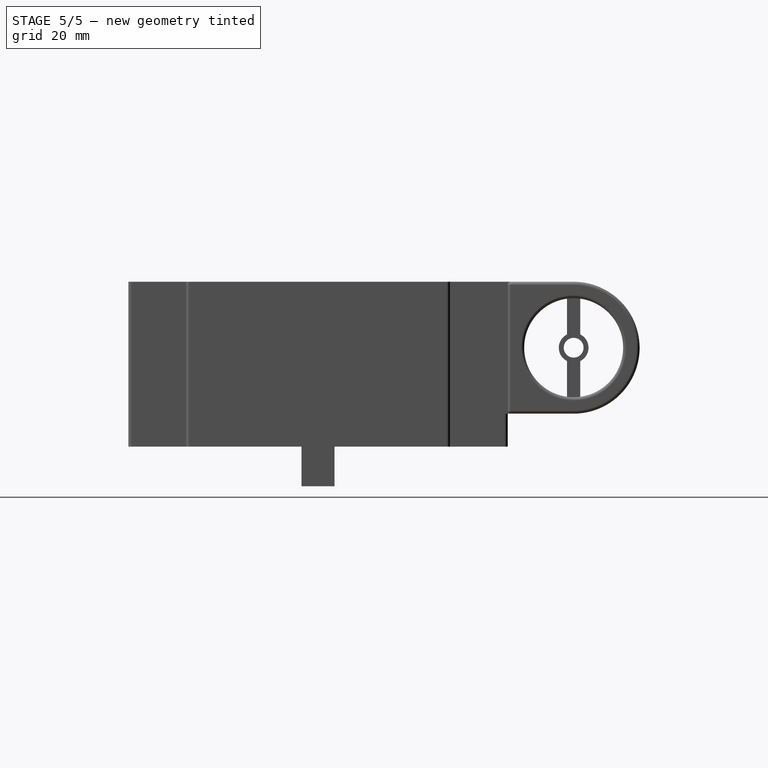
[diagram: stage 5 of 5 — right view after this stage's code; geometry added in this stage tinted green]
FEATURE [Sketcher::SketchObject] Sketch014
  ArcFitTolerance = 1e-06
  AttachmentSupport = -> [YZ_Plane]
  ExternalGeometry = -> [Pad004]
  FullyConstrained = true
  MakeInternals = false
  MapMode = 5
  Placement = pos=(0,0,0) rot=(0.57735,0.57735,0.57735;2.0944rad)
  sketch-geometry (1):
    g0: Circle CenterX=77.5 CenterY=30 CenterZ=0 NormalX=0 NormalY=0 NormalZ=1 AngleXU=0 Radius=3
  constraints (2):
    c: Diameter(g0) = 6
    c: Coincident(g0,g-3)
FEATURE [PartDesign::Pocket] Pocket009  label="fan holder hole"
  BaseFeature = -> Pad004
  Direction = (-1,0,0)
  Length = 70
  Length2 = 5
  Profile = -> Sketch014
  ReferenceAxis = -> Sketch014 [N_Axis]
  Refine = true
  Reversed = true
  Suppressed = false
  Type = 0
FEATURE [PartDesign::Fillet] Fillet
  Base = -> Pocket009 [Edge96]
  BaseFeature = -> Pocket009
  Radius = 1
  Refine = true
  SupportTransform = false
  Suppressed = false
  UseAllEdges = false
FEATURE [PartDesign::Fillet] Fillet001
  Base = -> Fillet [Edge42,Edge4,Edge41]
  BaseFeature = -> Fillet
  Radius = 1
  Refine = true
  SupportTransform = false
  Suppressed = false
  UseAllEdges = false
FEATURE [PartDesign::Fillet] Fillet002
  Base = -> Fillet001 [Edge132]
  BaseFeature = -> Fillet001
  Radius = 1
  Refine = true
  SupportTransform = false
  Suppressed = false
  UseAllEdges = false
FEATURE [PartDesign::Fillet] Fillet003
  Base = -> Fillet002 [Edge63,Edge36,Edge59,Edge19]
  BaseFeature = -> Fillet002
  Radius = 1
  Refine = true
  SupportTransform = false
  Suppressed = false
  UseAllEdges = false
FEATURE [PartDesign::Fillet] Fillet004
  Base = -> Fillet003 [Edge45,Edge82]
  BaseFeature = -> Fillet003
  Radius = 1
  Refine = true
  SupportTransform = false
  Suppressed = false
  UseAllEdges = false
FEATURE [PartDesign::Fillet] Fillet005
  Base = -> Fillet004 [Edge88,Edge31]
  BaseFeature = -> Fillet004
  Radius = 1
  Refine = true
  SupportTransform = false
  Suppressed = false
  UseAllEdges = false
FEATURE [PartDesign::Fillet] Fillet006
  Base = -> Fillet005 [Edge39,Edge4,Edge27]
  BaseFeature = -> Fillet005
  Radius = 1
  Refine = true
  SupportTransform = false
  Suppressed = false
  UseAllEdges = false
FEATURE [Sketcher::SketchObject] Sketch015
  ArcFitTolerance = 1e-06
  AttachmentOffset = pos=(0,0,-45) rot=(0,0,1;0rad)
  AttachmentSupport = -> [XZ_Plane]
  FullyConstrained = false
  MakeInternals = false
  MapMode = 5
  Placement = pos=(0,45,-1e-14) rot=(1,0,0;1.5708rad)
  sketch-geometry (1):
    g0: Circle CenterX=50.3281 CenterY=30.2983 CenterZ=0 NormalX=0 NormalY=0 NormalZ=1 AngleXU=0 Radius=2
  constraints (1):
    c: Diameter(g0) = 4
FEATURE [PartDesign::Pocket] Pocket010  label="fan cable hole"
  BaseFeature = -> Fillet006
  Direction = (0,1,-2e-16)
  Length = 40
  Length2 = 5
  Profile = -> Sketch015
  ReferenceAxis = -> Sketch015 [N_Axis]
  Refine = true
  Suppressed = false
  Type = 0
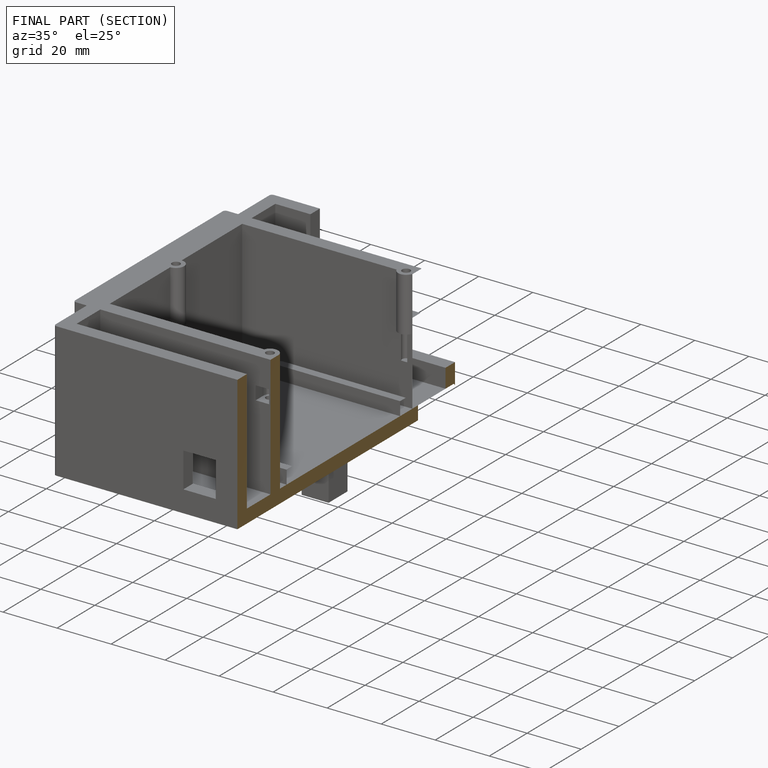
[diagram: finished part — half-section view (interior)]
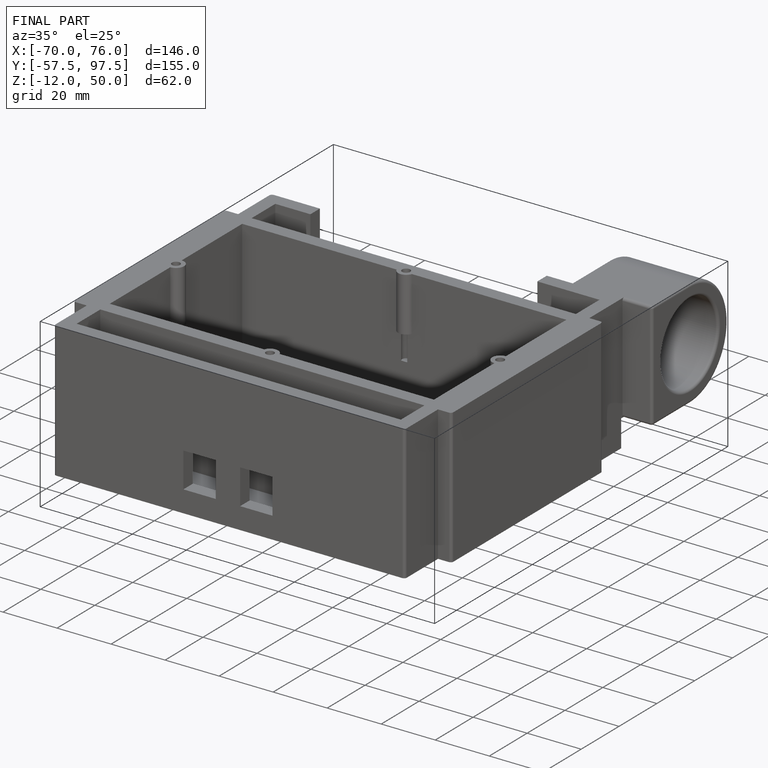
[diagram: finished part — iso view with bounding-box wireframe]
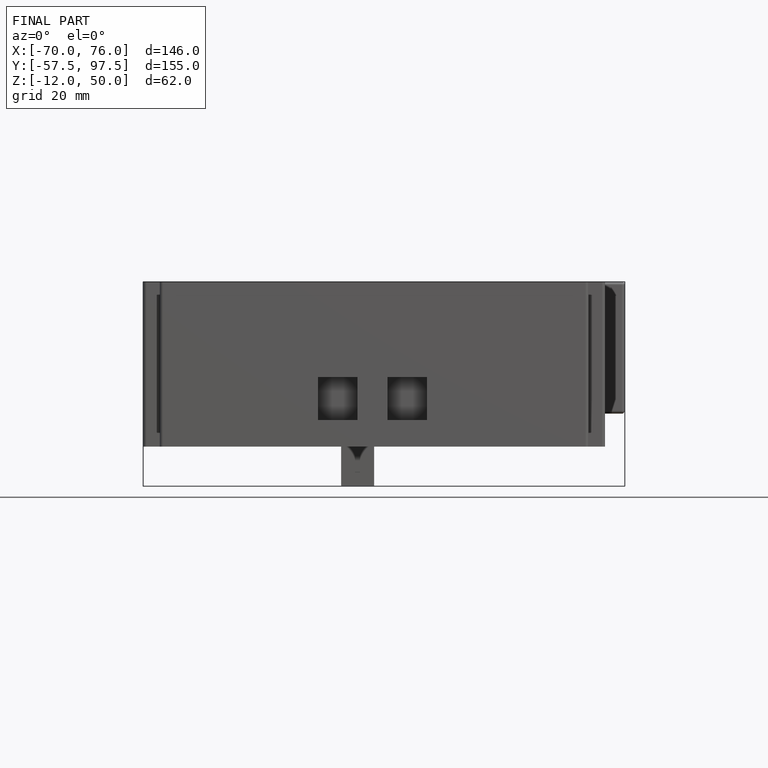
[diagram: finished part — front view with bounding-box wireframe]
